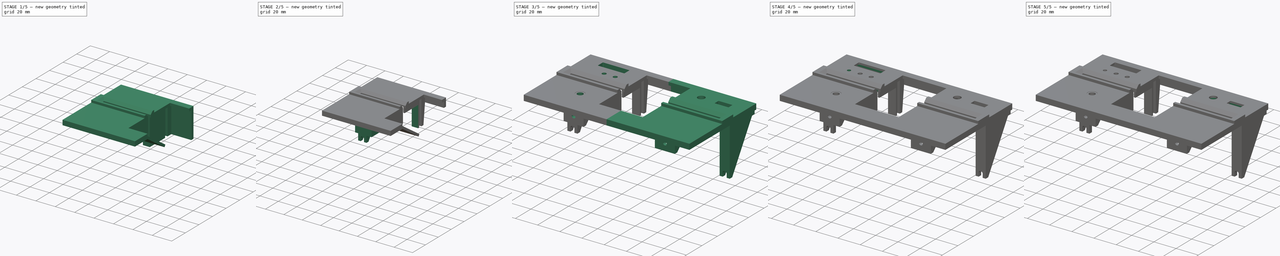
[diagram: build sequence overview — one tinted view per stage of 5, left to right]
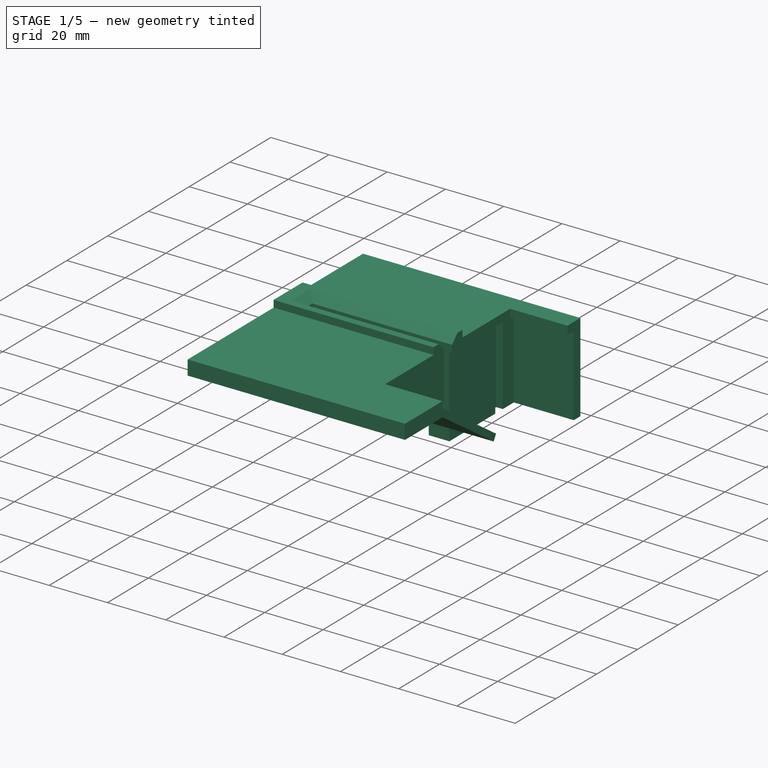
[diagram: stage 1 of 5 — iso view after this stage's code; geometry added in this stage tinted green]
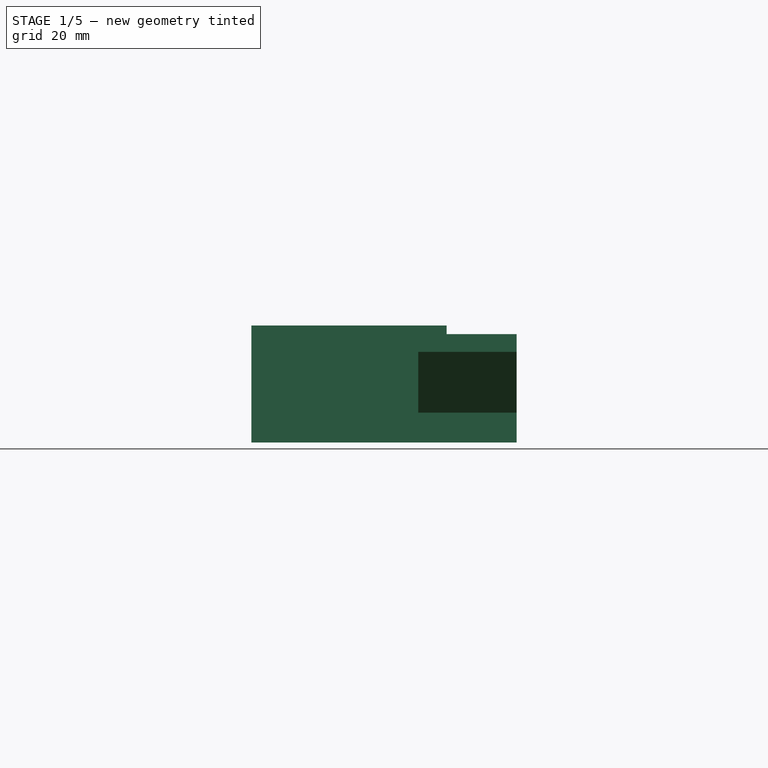
[diagram: stage 1 of 5 — front view after this stage's code; geometry added in this stage tinted green]
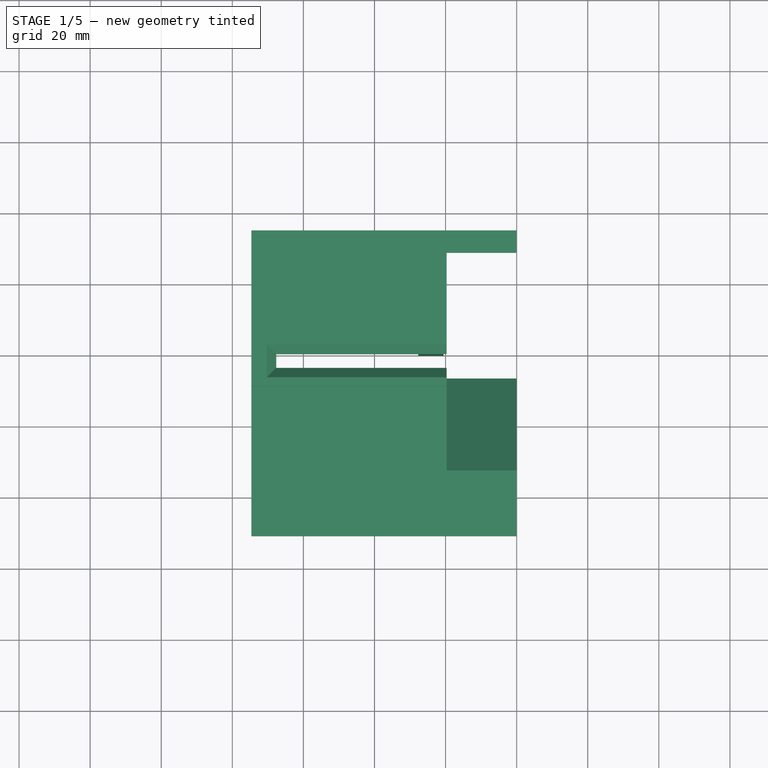
[diagram: stage 1 of 5 — top view after this stage's code; geometry added in this stage tinted green]
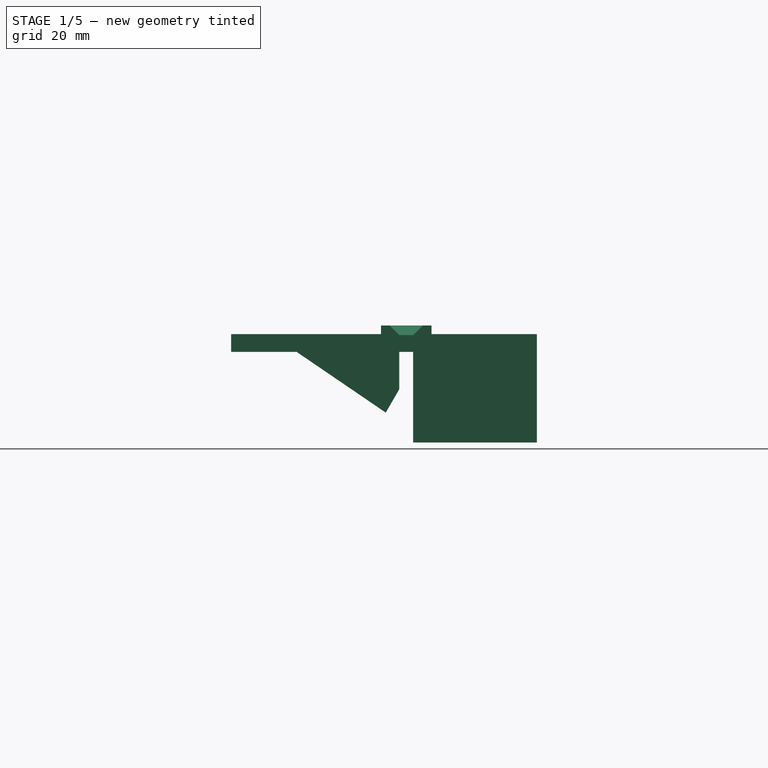
[diagram: stage 1 of 5 — right view after this stage's code; geometry added in this stage tinted green]
FCSTD DOCUMENT  (FreeCAD 0.21R33771 (Git))
Label: m4-floppy-face2
License: All rights reserved
LicenseURL: http://en.wikipedia.org/wiki/All_rights_reserved
objects: Sketcher::SketchObject×38, PartDesign::Pocket×20, PartDesign::Pad×17, PartDesign::Chamfer×1, PartDesign::Mirrored×1, PartDesign::Body×1
note: 116 computed .brp shape members not serialized (recipe doc carries the construction recipe); baked Part::Feature solids carry a one-line shape summary decoded from their .brp

FEATURE [Sketcher::SketchObject] Sketch
  FullyConstrained = true
  MapMode = 5
  Support = -> [XY_Plane]
  sketch-geometry (12):
    g0: LineSegment StartX=0 StartY=34.8 StartZ=0 EndX=-74.65 EndY=34.8 EndZ=0
    g1: LineSegment StartX=-74.65 StartY=34.8 StartZ=0 EndX=-74.65 EndY=-51.2 EndZ=0
    g2: LineSegment StartX=-74.65 StartY=-51.2 StartZ=0 EndX=0 EndY=-51.2 EndZ=0
    g3: LineSegment StartX=-19.7 StartY=0 StartZ=0 EndX=-67.65 EndY=0 EndZ=0
    g4: LineSegment StartX=-67.65 StartY=0 StartZ=0 EndX=-67.65 EndY=-3.9 EndZ=0
    g5: LineSegment StartX=-67.65 StartY=-3.9 StartZ=0 EndX=-19.7 EndY=-3.9 EndZ=0
    g6: LineSegment StartX=-19.7 StartY=0 StartZ=0 EndX=-19.7 EndY=28.5 EndZ=0
    g7: LineSegment StartX=-19.7 StartY=28.5 StartZ=0 EndX=0 EndY=28.5 EndZ=0
    g8: LineSegment StartX=-19.7 StartY=-3.9 StartZ=0 EndX=-19.7 EndY=-32.8 EndZ=0
    g9: LineSegment StartX=-19.7 StartY=-32.8 StartZ=0 EndX=0 EndY=-32.8 EndZ=0
    g10: LineSegment StartX=0 StartY=28.5 StartZ=0 EndX=0 EndY=34.8 EndZ=0
    g11: LineSegment StartX=0 StartY=-32.8 StartZ=0 EndX=0 EndY=-51.2 EndZ=0
  constraints (36):
    c: PointOnObject(g0,g-2)
    c: Horizontal(g0)
    c: Coincident(g1,g0)
    c: Vertical(g1)
    c: Coincident(g2,g1)
    c: PointOnObject(g2,g-2)
    c: Horizontal(g2)
    c: DistanceX(g0,g0) = 74.65
    c: DistanceY(g1,g1) = 86
    c: DistanceY(g-1,g0) = 34.8
    c: PointOnObject(g3,g-1)
    c: Coincident(g4,g3)
    c: Vertical(g4)
    c: Coincident(g5,g4)
    c: Horizontal(g5)
    c: DistanceY(g4,g4) = 3.9
    c: Vertical(g6)
    c: Coincident(g7,g6)
    c: PointOnObject(g7,g-2)
    c: Horizontal(g7)
    c: DistanceX(g7,g7) = 19.7
    c: DistanceY(g6,g0) = 6.3
    c: Coincident(g3,g6)
    c: Horizontal(g3)
    c: Vertical(g8)
    c: Coincident(g9,g8)
    c: PointOnObject(g9,g-2)
    c: Horizontal(g9)
    c: DistanceY(g1,g8) = 18.4
    c: PointOnObject(g8,g6)
    c: Coincident(g5,g8)
    c: DistanceX(g4,g-1) = 67.65
    c: Coincident(g10,g7)
    c: Coincident(g10,g0)
    c: Coincident(g11,g9)
    c: Coincident(g11,g2)
FEATURE [PartDesign::Pad] Pad
  Direction = (0,0,1)
  Length = 7.4
  Length2 = 10
  Profile = -> Sketch
  ReferenceAxis = -> Sketch [N_Axis]
  Type = 0
FEATURE [Sketcher::SketchObject] Sketch001
  ExternalGeometry = -> [Pad]
  FullyConstrained = true
  MapMode = 5
  Placement = pos=(0,0,7.4) rot=(0,0,1;0rad)
  Support = -> [Pad]
  sketch-geometry (12):
    g0: LineSegment StartX=-19.7 StartY=-3.9 StartZ=0 EndX=-19.7 EndY=-9.05 EndZ=0
    g1: LineSegment StartX=-19.7 StartY=-9.05 StartZ=0 EndX=-74.65 EndY=-9.05 EndZ=0
    g2: LineSegment StartX=-74.65 StartY=5.15 StartZ=0 EndX=-19.7 EndY=5.15 EndZ=0
    g3: LineSegment StartX=-19.7 StartY=5.15 StartZ=0 EndX=-19.7 EndY=0 EndZ=0
    g4: LineSegment StartX=-19.7 StartY=5.15 StartZ=0 EndX=0 EndY=5.15 EndZ=0
    g5: LineSegment StartX=0 StartY=5.15 StartZ=0 EndX=0 EndY=34.8 EndZ=0
    g6: LineSegment StartX=-74.65 StartY=34.8 StartZ=0 EndX=0 EndY=34.8 EndZ=0
    g7: LineSegment StartX=-74.65 StartY=34.8 StartZ=0 EndX=-74.65 EndY=5.15 EndZ=0
    g8: LineSegment StartX=-74.65 StartY=-9.05 StartZ=0 EndX=-74.65 EndY=-51.2 EndZ=0
    g9: LineSegment StartX=-74.65 StartY=-51.2 StartZ=0 EndX=0 EndY=-51.2 EndZ=0
    g10: LineSegment StartX=0 StartY=-51.2 StartZ=0 EndX=0 EndY=-9.05 EndZ=0
    g11: LineSegment StartX=0 StartY=-9.05 StartZ=0 EndX=-19.7 EndY=-9.05 EndZ=0
  constraints (32):
    c: PointOnObject(g0,g-5)
    c: Coincident(g1,g0)
    c: PointOnObject(g1,g-3)
    c: PointOnObject(g2,g-3)
    c: PointOnObject(g2,g-4)
    c: Horizontal(g2)
    c: Coincident(g3,g2)
    c: Horizontal(g1)
    c: Equal(g3,g0)
    c: DistanceY(g1,g2) = 14.2
    c: Coincident(g3,g-4)
    c: Coincident(g0,g-5)
    c: Coincident(g4,g2)
    c: PointOnObject(g4,g-2)
    c: Horizontal(g4)
    c: Coincident(g5,g4)
    c: PointOnObject(g5,g-2)
    c: Coincident(g6,g-3)
    c: Coincident(g6,g5)
    c: Horizontal(g6)
    c: Coincident(g7,g6)
    c: Coincident(g7,g2)
    c: Coincident(g8,g1)
    c: Coincident(g8,g-3)
    c: Coincident(g9,g8)
    c: PointOnObject(g9,g-2)
    c: Horizontal(g9)
    c: Coincident(g10,g9)
    c: Vertical(g10)
    c: Coincident(g11,g10)
    c: Coincident(g11,g1)
    c: Horizontal(g11)
FEATURE [PartDesign::Pocket] Pocket
  BaseFeature = -> Pad
  Direction = (0,0,-1)
  Length = 2.4
  Length2 = 5
  Profile = -> Sketch001
  ReferenceAxis = -> Sketch001 [N_Axis]
  Type = 0
FEATURE [PartDesign::Chamfer] Chamfer
  Angle = 45
  Base = -> Pocket [Edge26,Edge27,Edge28]
  BaseFeature = -> Pocket
  ChamferType = 0
  FlipDirection = false
  Size = 2.7
  Size2 = 1
  SupportTransform = false
  UseAllEdges = false
FEATURE [Sketcher::SketchObject] Sketch002
  ExternalGeometry = -> [Chamfer]
  FullyConstrained = true
  MapMode = 5
  Placement = pos=(-19.7,0,0) rot=(0.57735,0.57735,0.57735;2.0944rad)
  Support = -> [Chamfer]
  sketch-geometry (5):
    g0: LineSegment StartX=-3.9 StartY=0 StartZ=0 EndX=-32.8 EndY=0 EndZ=0
    g1: LineSegment StartX=-32.8 StartY=5 StartZ=0 EndX=-32.8 EndY=0 EndZ=0
    g2: LineSegment StartX=-32.8 StartY=0 StartZ=0 EndX=-7.7 EndY=-17.1 EndZ=0
    g3: LineSegment StartX=-3.9 StartY=0 StartZ=0 EndX=-3.9 EndY=-10.5182 EndZ=0
    g4: LineSegment StartX=-3.9 StartY=-10.5182 StartZ=0 EndX=-7.7 EndY=-17.1 EndZ=0
  constraints (13):
    c: Coincident(g0,g-4)
    c: PointOnObject(g0,g-1)
    c: Coincident(g1,g-3)
    c: Coincident(g1,g0)
    c: Vertical(g1)
    c: Coincident(g3,g0)
    c: Vertical(g3)
    c: Coincident(g4,g3)
    c: Coincident(g4,g2)
    c: Angle(g3,g4) = 2.61799
    c: DistanceY(g2,g-5) = 24.5
    c: Distance(g4) = 7.6
    c: Coincident(g2,g0)
FEATURE [PartDesign::Pad] Pad001
  BaseFeature = -> Chamfer
  Direction = (1,0,0)
  Length = 3
  Length2 = 10
  Profile = -> Sketch002
  ReferenceAxis = -> Sketch002 [N_Axis]
  Reversed = true
  Type = 0
FEATURE [Sketcher::SketchObject] Sketch003
  ExternalGeometry = -> [Pad001]
  FullyConstrained = true
  MapMode = 5
  Placement = pos=(-19.7,0,0) rot=(0.57735,0.57735,0.57735;2.0944rad)
  Support = -> [Pad001]
  sketch-geometry (5):
    g0: LineSegment StartX=-32.8 StartY=0 StartZ=0 EndX=-7.7 EndY=-17.1 EndZ=0
    g1: LineSegment StartX=-7.7 StartY=-17.1 StartZ=0 EndX=-6.54681 EndY=-15.1026 EndZ=0
    g2: LineSegment StartX=-6.54681 StartY=-15.1026 StartZ=0 EndX=-32.8 EndY=2.78303 EndZ=0
    g3: LineSegment StartX=-32.8 StartY=0 StartZ=0 EndX=-32.8 EndY=2.78303 EndZ=0
    g4: LineSegment StartX=-6.54681 StartY=-15.1026 StartZ=0 EndX=-7.84178 EndY=-17.0034 EndZ=0
  constraints (13):
    c: Coincident(g0,g-5)
    c: Coincident(g1,g0)
    c: PointOnObject(g1,g-5)
    c: Coincident(g2,g1)
    c: Coincident(g3,g0)
    c: Coincident(g3,g2)
    c: Vertical(g3)
    c: Coincident(g0,g-4)
    c: Parallel(g2,g0)
    c: Coincident(g4,g1)
    c: PointOnObject(g4,g0)
    c: Perpendicular(g0,g4)
    c: Distance(g4) = 2.3
FEATURE [PartDesign::Pad] Pad002
  BaseFeature = -> Pad001
  Direction = (1,0,0)
  Length = 10
  Length2 = 10
  Profile = -> Sketch003
  ReferenceAxis = -> Sketch003 [N_Axis]
  Type = 3
  UpToFace = -> Pad001 [Face21]
FEATURE [Sketcher::SketchObject] Sketch004
  ExternalGeometry = -> [Pad002]
  FullyConstrained = true
  MapMode = 5
  Placement = pos=(0,0,0) rot=(1,0,0;3.14159rad)
  Support = -> [Pad002]
  sketch-geometry (8):
    g0: LineSegment StartX=-19.7 StartY=0 StartZ=0 EndX=-27.7 EndY=0 EndZ=0
    g1: LineSegment StartX=-27.7 StartY=0 StartZ=0 EndX=-27.7 EndY=-31.6 EndZ=0
    g2: LineSegment StartX=-19.7 StartY=0 StartZ=0 EndX=-19.7 EndY=-28.5 EndZ=0
    g3: LineSegment StartX=-27.7 StartY=-31.6 StartZ=0 EndX=-74.65 EndY=-31.6 EndZ=0
    g4: LineSegment StartX=-74.65 StartY=-31.6 StartZ=0 EndX=-74.65 EndY=-34.8 EndZ=0
    g5: LineSegment StartX=-74.65 StartY=-34.8 StartZ=0 EndX=0 EndY=-34.8 EndZ=0
    g6: LineSegment StartX=-19.7 StartY=-28.5 StartZ=0 EndX=0 EndY=-28.5 EndZ=0
    g7: LineSegment StartX=0 StartY=-28.5 StartZ=0 EndX=0 EndY=-34.8 EndZ=0
  constraints (21):
    c: Coincident(g0,g-3)
    c: PointOnObject(g0,g-1)
    c: Coincident(g1,g0)
    c: Vertical(g1)
    c: Coincident(g2,g0)
    c: Vertical(g2)
    c: DistanceX(g0,g0) = 8
    c: Horizontal(g3)
    c: Coincident(g4,g3)
    c: Coincident(g4,g-5)
    c: Vertical(g4)
    c: Coincident(g5,g4)
    c: Coincident(g1,g3)
    c: Coincident(g6,g-3)
    c: PointOnObject(g6,g-2)
    c: Horizontal(g6)
    c: Coincident(g7,g6)
    c: Coincident(g7,g-5)
    c: PointOnObject(g2,g6)
    c: Coincident(g5,g7)
    c: DistanceY(g4,g4) = 3.2
FEATURE [PartDesign::Pad] Pad003
  BaseFeature = -> Pad002
  Direction = (0,0,-1)
  Length = 25.5
  Length2 = 10
  Profile = -> Sketch004
  ReferenceAxis = -> Sketch004 [N_Axis]
  Type = 0
FEATURE [Sketcher::SketchObject] Sketch005
  ExternalGeometry = -> [Pad003]
  FullyConstrained = true
  MapMode = 5
  Placement = pos=(0,0,-25.5) rot=(1,0,0;3.14159rad)
  Support = -> [Pad003]
  sketch-geometry (8):
    g0: LineSegment StartX=0 StartY=1.4 StartZ=0 EndX=-20.6 EndY=1.4 EndZ=0
    g1: LineSegment StartX=-20.6 StartY=1.4 StartZ=0 EndX=-20.6 EndY=-22.5 EndZ=0
    g2: LineSegment StartX=-20.6 StartY=-22.5 StartZ=0 EndX=-22.9 EndY=-22.5 EndZ=0
    g3: LineSegment StartX=-22.9 StartY=-22.5 StartZ=0 EndX=-22.9 EndY=-26.2 EndZ=0
    g4: LineSegment StartX=-22.9 StartY=-26.2 StartZ=0 EndX=-20.6 EndY=-26.2 EndZ=0
    g5: LineSegment StartX=-20.6 StartY=-26.2 StartZ=0 EndX=-20.6 EndY=-31.6 EndZ=0
    g6: LineSegment StartX=-20.6 StartY=-31.6 StartZ=0 EndX=0 EndY=-31.6 EndZ=0
    g7: LineSegment StartX=0 StartY=-31.6 StartZ=0 EndX=0 EndY=1.4 EndZ=0
  constraints (24):
    c: PointOnObject(g0,g-2)
    c: Horizontal(g0)
    c: Coincident(g1,g0)
    c: Vertical(g1)
    c: Coincident(g2,g1)
    c: Horizontal(g2)
    c: Coincident(g3,g2)
    c: Vertical(g3)
    c: Coincident(g4,g3)
    c: Horizontal(g4)
    c: Coincident(g5,g4)
    c: Vertical(g5)
    c: Coincident(g6,g5)
    c: PointOnObject(g6,g-2)
    c: Horizontal(g6)
    c: Coincident(g7,g6)
    c: Coincident(g7,g0)
    c: DistanceY(g3,g3) = 3.7
    c: DistanceY(g-3,g6) = 3.2
    c: DistanceY(g7,g7) = 33
    c: DistanceY(g-3,g4) = 8.6
    c: PointOnObject(g4,g1)
    c: DistanceX(g3,g-3) = 22.9
    c: DistanceX(g6,g6) = 20.6
FEATURE [PartDesign::Pocket] Pocket001
  BaseFeature = -> Pad003
  Direction = (0,0,1)
  Length = 27.7
  Length2 = 5
  Profile = -> Sketch005
  ReferenceAxis = -> Sketch005 [N_Axis]
  Type = 0
FEATURE [Sketcher::SketchObject] Sketch006
  ExternalGeometry = -> [Pocket001]
  FullyConstrained = true
  MapMode = 5
  Placement = pos=(-22.7,0,0) rot=(0.57735,-0.57735,-0.57735;2.0944rad)
  Support = -> [Pocket001]
  sketch-geometry (4):
    g0: LineSegment StartX=3.9 StartY=0 StartZ=0 EndX=32.8 EndY=0 EndZ=0
    g1: LineSegment StartX=32.8 StartY=0 StartZ=0 EndX=7.7 EndY=-17.1 EndZ=0
    g2: LineSegment StartX=7.7 StartY=-17.1 StartZ=0 EndX=3.9 EndY=-10.5182 EndZ=0
    g3: LineSegment StartX=3.9 StartY=-10.5182 StartZ=0 EndX=3.9 EndY=0 EndZ=0
  constraints (8):
    c: Coincident(g0,g-4)
    c: Coincident(g0,g-6)
    c: Coincident(g1,g0)
    c: Coincident(g1,g-6)
    c: Coincident(g2,g1)
    c: Coincident(g2,g-5)
    c: Coincident(g3,g2)
    c: Coincident(g3,g0)
FEATURE [PartDesign::Pad] Pad004
  BaseFeature = -> Pocket001
  Direction = (-1,0,0)
  Length = 10
  Length2 = 10
  Profile = -> Sketch006
  ReferenceAxis = -> Sketch006 [N_Axis]
  Type = 3
  UpToFace = -> Pocket001 [Face26]
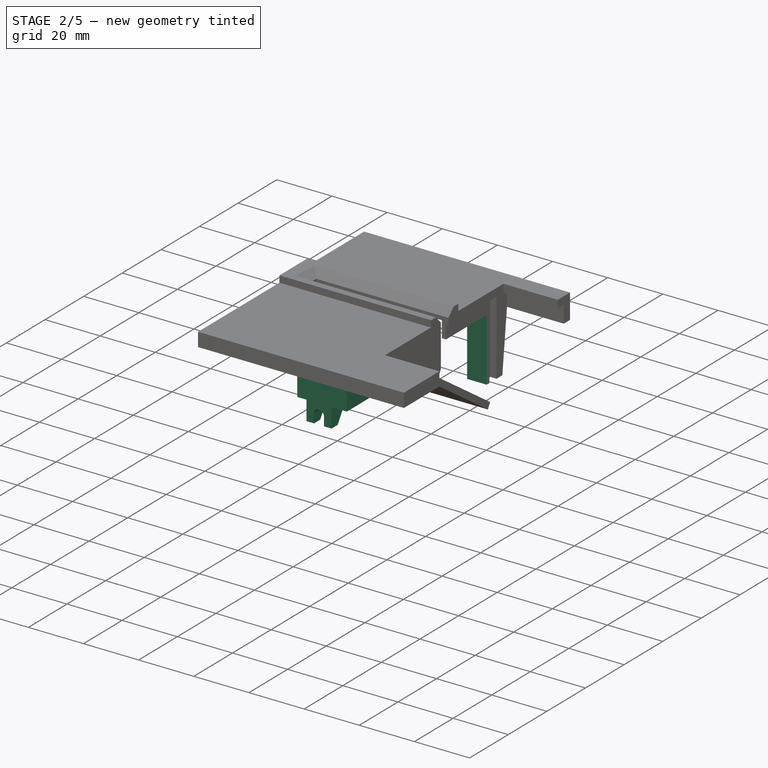
[diagram: stage 2 of 5 — iso view after this stage's code; geometry added in this stage tinted green]
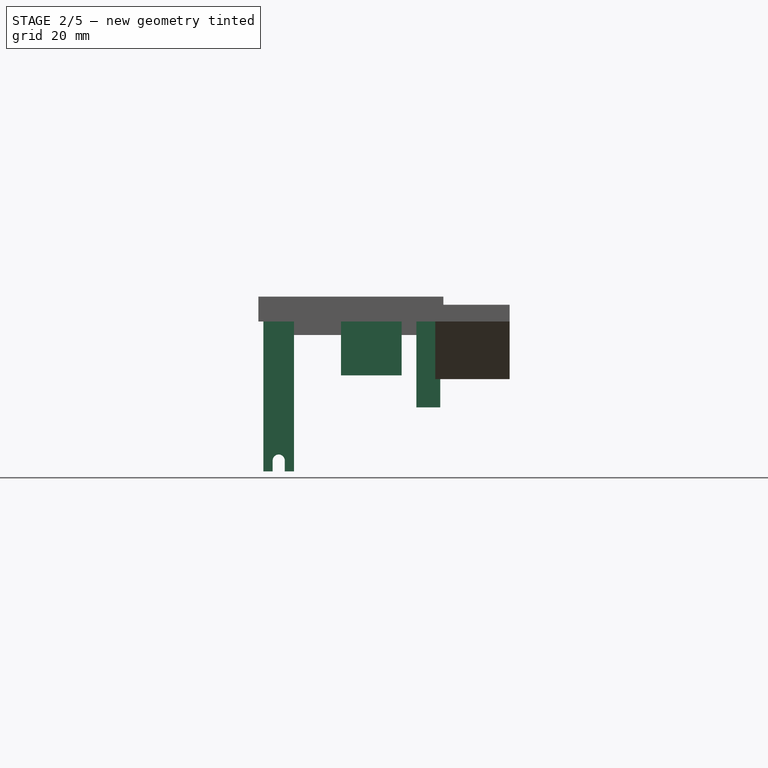
[diagram: stage 2 of 5 — front view after this stage's code; geometry added in this stage tinted green]
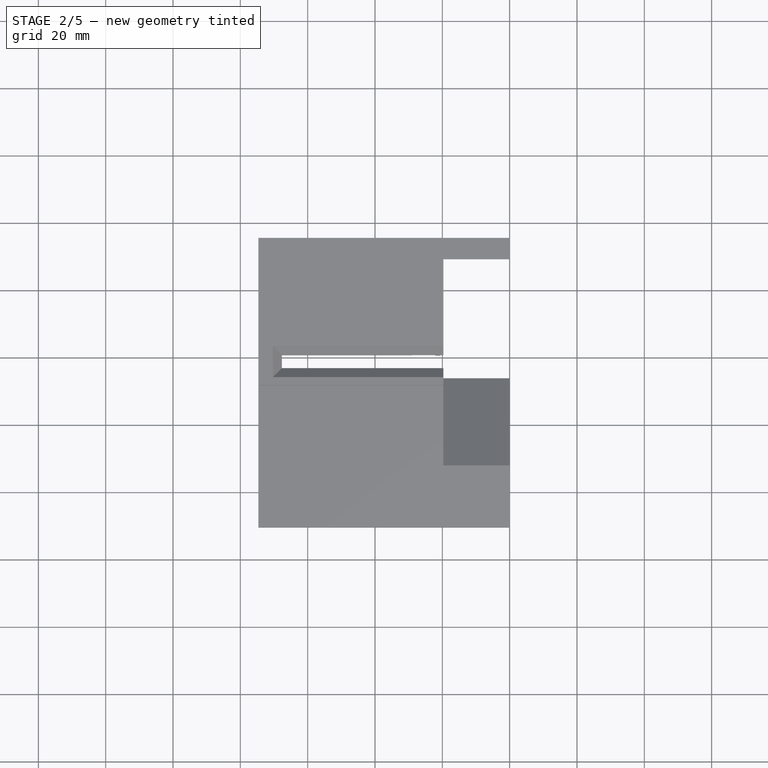
[diagram: stage 2 of 5 — top view after this stage's code; geometry added in this stage tinted green]
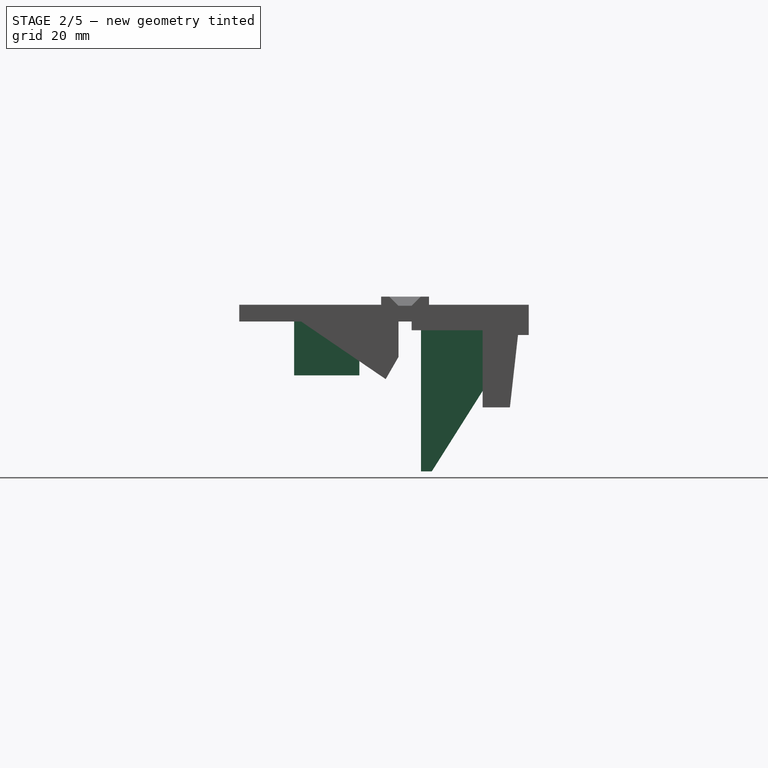
[diagram: stage 2 of 5 — right view after this stage's code; geometry added in this stage tinted green]
FEATURE [Sketcher::SketchObject] Sketch007
  ExternalGeometry = -> [Pad004]
  FullyConstrained = true
  MapMode = 5
  Placement = pos=(-27.7,0,0) rot=(0.57735,-0.57735,-0.57735;2.0944rad)
  Support = -> [Pad004]
  sketch-geometry (4):
    g0: LineSegment StartX=0 StartY=-25.5 StartZ=0 EndX=-21.1 EndY=-25.5 EndZ=0
    g1: LineSegment StartX=-21.1 StartY=-25.5 StartZ=0 EndX=-21.1 EndY=-2.6 EndZ=0
    g2: LineSegment StartX=-21.1 StartY=-2.6 StartZ=0 EndX=0 EndY=-2.6 EndZ=0
    g3: LineSegment StartX=0 StartY=-2.6 StartZ=0 EndX=0 EndY=-25.5 EndZ=0
  constraints (11):
    c: Coincident(g0,g1)
    c: Coincident(g1,g2)
    c: Coincident(g2,g3)
    c: Coincident(g3,g0)
    c: Horizontal(g0)
    c: Horizontal(g2)
    c: Vertical(g1)
    c: Vertical(g3)
    c: Coincident(g0,g-3)
    c: DistanceX(g1,g-4) = 25
    c: DistanceY(g2,g-1) = 2.6
FEATURE [PartDesign::Pocket] Pocket002
  BaseFeature = -> Pad004
  Direction = (1,0,0)
  Length = 8
  Length2 = 5
  Profile = -> Sketch007
  ReferenceAxis = -> Sketch007 [N_Axis]
  Type = 0
FEATURE [Sketcher::SketchObject] Sketch008
  ExternalGeometry = -> [Pocket002]
  FullyConstrained = true
  MapMode = 5
  Placement = pos=(0,0,-25.5) rot=(1,0,0;3.14159rad)
  Support = -> [Pocket002]
  sketch-geometry (4):
    g0: LineSegment StartX=-22.1 StartY=-21.1 StartZ=0 EndX=-29 EndY=-21.1 EndZ=0
    g1: LineSegment StartX=-29 StartY=-21.1 StartZ=0 EndX=-29 EndY=32.8 EndZ=0
    g2: LineSegment StartX=-29 StartY=32.8 StartZ=0 EndX=-22.1 EndY=32.8 EndZ=0
    g3: LineSegment StartX=-22.1 StartY=32.8 StartZ=0 EndX=-22.1 EndY=-21.1 EndZ=0
  constraints (12):
    c: Coincident(g0,g1)
    c: Coincident(g1,g2)
    c: Coincident(g2,g3)
    c: Coincident(g3,g0)
    c: Horizontal(g0)
    c: Horizontal(g2)
    c: Vertical(g1)
    c: Vertical(g3)
    c: PointOnObject(g0,g-3)
    c: DistanceX(g0,g-1) = 29
    c: DistanceX(g2,g-1) = 22.1
    c: PointOnObject(g-4,g2)
FEATURE [PartDesign::Pocket] Pocket003
  BaseFeature = -> Pocket002
  Direction = (0,0,1)
  Length = 28.8
  Length2 = 5
  Profile = -> Sketch008
  ReferenceAxis = -> Sketch008 [N_Axis]
  Type = 0
FEATURE [Sketcher::SketchObject] Sketch009
  ExternalGeometry = -> [Pocket003]
  FullyConstrained = true
  MapMode = 5
  Placement = pos=(-74.65,0,0) rot=(0.57735,-0.57735,-0.57735;2.0944rad)
  Support = -> [Pocket003]
  sketch-geometry (4):
    g0: LineSegment StartX=-31.6 StartY=0 StartZ=0 EndX=-2.8 EndY=0 EndZ=0
    g1: LineSegment StartX=-2.8 StartY=0 StartZ=0 EndX=-2.8 EndY=-44.5 EndZ=0
    g2: LineSegment StartX=-2.8 StartY=-44.5 StartZ=0 EndX=-31.6 EndY=-44.5 EndZ=0
    g3: LineSegment StartX=-31.6 StartY=-44.5 StartZ=0 EndX=-31.6 EndY=0 EndZ=0
  constraints (11):
    c: Coincident(g0,g1)
    c: Coincident(g1,g2)
    c: Coincident(g2,g3)
    c: Coincident(g3,g0)
    c: Horizontal(g0)
    c: Horizontal(g2)
    c: Vertical(g1)
    c: Vertical(g3)
    c: Coincident(g0,g-3)
    c: DistanceY(g1,g-4) = 49.5
    c: DistanceX(g0,g-5) = 54
FEATURE [PartDesign::Pad] Pad005
  BaseFeature = -> Pocket003
  Direction = (-1,0,0)
  Length = 10.6
  Length2 = 10
  Profile = -> Sketch009
  ReferenceAxis = -> Sketch009 [N_Axis]
  Reversed = true
  Type = 0
FEATURE [Sketcher::SketchObject] Sketch010
  ExternalGeometry = -> [Pad005]
  FullyConstrained = true
  MapMode = 5
  Placement = pos=(0,2.8,0) rot=(1,0,0;1.5708rad)
  Support = -> [Pad005]
  sketch-geometry (6):
    g0: ArcOfCircle CenterX=-68.6 CenterY=-41.3 CenterZ=0 NormalX=0 NormalY=0 NormalZ=1 AngleXU=0 Radius=1.8 StartAngle=-2.7e-15 EndAngle=3.14159
    g1: ArcOfCircle CenterX=-68.6 CenterY=-44.5 CenterZ=0 NormalX=0 NormalY=0 NormalZ=1 AngleXU=0 Radius=1.8 StartAngle=3.14159 EndAngle=6.28319
    g2: LineSegment StartX=-70.4 StartY=-41.3 StartZ=0 EndX=-70.4 EndY=-44.5 EndZ=0
    g3: LineSegment StartX=-66.8 StartY=-44.5 StartZ=0 EndX=-66.8 EndY=-41.3 EndZ=0
    g4: GeomPoint X=-68.6 Y=-39.5 Z=0
    g5: LineSegment StartX=-68.6 StartY=-39.5 StartZ=0 EndX=-68.6 EndY=-44.5 EndZ=0
  constraints (14):
    c: Tangent(g0,g2) = -1.5708
    c: Tangent(g2,g1) = -1.5708
    c: Tangent(g1,g3) = -1.5708
    c: Tangent(g3,g0) = -1.5708
    c: Equal(g0,g1)
    c: Vertical(g2)
    c: PointOnObject(g4,g0)
    c: Coincident(g5,g4)
    c: Coincident(g5,g1)
    c: Vertical(g5)
    c: DistanceY(g4,g-4) = 44.5
    c: Diameter(g0) = 3.6
    c: PointOnObject(g1,g-3)
    c: DistanceX(g0,g-1) = 66.8
FEATURE [PartDesign::Pocket] Pocket004
  BaseFeature = -> Pad005
  Direction = (0,1,-2e-16)
  Length = 5
  Length2 = 5
  Profile = -> Sketch010
  ReferenceAxis = -> Sketch010 [N_Axis]
  Type = 1
FEATURE [Sketcher::SketchObject] Sketch011
  ExternalGeometry = -> [Pocket004]
  FullyConstrained = true
  MapMode = 5
  Placement = pos=(-74.65,0,0) rot=(0.57735,-0.57735,-0.57735;2.0944rad)
  Support = -> [Pocket004]
  sketch-geometry (4):
    g0: LineSegment StartX=-6 StartY=-44.5 StartZ=0 EndX=-31.6 EndY=-4 EndZ=0
    g1: LineSegment StartX=-34.8 StartY=-4 StartZ=0 EndX=-34.8 EndY=-44.5 EndZ=0
    g2: LineSegment StartX=-34.8 StartY=-44.5 StartZ=0 EndX=-6 EndY=-44.5 EndZ=0
    g3: LineSegment StartX=-34.8 StartY=-4 StartZ=0 EndX=-31.6 EndY=-4 EndZ=0
  constraints (13):
    c: PointOnObject(g0,g-4)
    c: Vertical(g1)
    c: Coincident(g2,g1)
    c: Coincident(g2,g0)
    c: Horizontal(g2)
    c: DistanceX(g0,g-4) = 3.2
    c: PointOnObject(g3,g0)
    c: Horizontal(g3)
    c: PointOnObject(g3,g-5)
    c: PointOnObject(g0,g-5)
    c: Coincident(g1,g3)
    c: PointOnObject(g1,g-3)
    c: DistanceY(g1,g-3) = 4
FEATURE [PartDesign::Pocket] Pocket005
  BaseFeature = -> Pocket004
  Direction = (1,0,0)
  Length = 0
  Length2 = 5
  Profile = -> Sketch011
  ReferenceAxis = -> Sketch011 [N_Axis]
  Type = 3
  UpToFace = -> Pocket004 [Face42]
FEATURE [Sketcher::SketchObject] Sketch012
  ExternalGeometry = -> [Pocket005]
  FullyConstrained = true
  MapMode = 5
  Placement = pos=(-27.7,0,0) rot=(0.57735,-0.57735,-0.57735;2.0944rad)
  Support = -> [Pocket005]
  sketch-geometry (4):
    g0: LineSegment StartX=-34.8 StartY=-4 StartZ=0 EndX=-34.8 EndY=-25.5 EndZ=0
    g1: LineSegment StartX=-34.8 StartY=-4 StartZ=0 EndX=-31.6 EndY=-4 EndZ=0
    g2: LineSegment StartX=-31.6 StartY=-4 StartZ=0 EndX=-29.2 EndY=-25.5 EndZ=0
    g3: LineSegment StartX=-29.2 StartY=-25.5 StartZ=0 EndX=-34.8 EndY=-25.5 EndZ=0
  constraints (11):
    c: Coincident(g0,g-4)
    c: Vertical(g0)
    c: PointOnObject(g1,g0)
    c: Coincident(g1,g-4)
    c: Horizontal(g1)
    c: Coincident(g2,g1)
    c: Coincident(g3,g0)
    c: Coincident(g3,g2)
    c: PointOnObject(g2,g-3)
    c: Horizontal(g3)
    c: DistanceX(g2,g-3) = 3
FEATURE [PartDesign::Pocket] Pocket006
  BaseFeature = -> Pocket005
  Direction = (1,0,0)
  Length = 5
  Length2 = 5
  Profile = -> Sketch012
  ReferenceAxis = -> Sketch012 [N_Axis]
  Type = 1
FEATURE [Sketcher::SketchObject] Sketch013
  ExternalGeometry = -> [Pocket006]
  FullyConstrained = true
  MapMode = 5
  Placement = pos=(-74.65,0,0) rot=(0.57735,-0.57735,-0.57735;2.0944rad)
  Support = -> [Pocket006]
  sketch-geometry (6):
    g0: LineSegment StartX=-34.8 StartY=0 StartZ=0 EndX=-34.8 EndY=-4 EndZ=0
    g1: LineSegment StartX=-34.8 StartY=-4 StartZ=0 EndX=-31.6 EndY=-4 EndZ=0
    g2: LineSegment StartX=-31.6 StartY=-4 StartZ=0 EndX=-6 EndY=-44.5 EndZ=0
    g3: LineSegment StartX=-6 StartY=-44.5 StartZ=0 EndX=-2.8 EndY=-44.5 EndZ=0
    g4: LineSegment StartX=-2.8 StartY=-44.5 StartZ=0 EndX=-2.8 EndY=0 EndZ=0
    g5: LineSegment StartX=-2.8 StartY=0 StartZ=0 EndX=-34.8 EndY=0 EndZ=0
  constraints (12):
    c: Coincident(g0,g-3)
    c: Coincident(g0,g-4)
    c: Coincident(g1,g0)
    c: Coincident(g1,g-5)
    c: Coincident(g2,g1)
    c: Coincident(g2,g-5)
    c: Coincident(g3,g2)
    c: Coincident(g3,g-6)
    c: Coincident(g4,g3)
    c: Coincident(g4,g-6)
    c: Coincident(g5,g4)
    c: Coincident(g5,g0)
FEATURE [PartDesign::Pocket] Pocket007
  BaseFeature = -> Pocket006
  Direction = (1,0,0)
  Length = 1.5
  Length2 = 5
  Profile = -> Sketch013
  ReferenceAxis = -> Sketch013 [N_Axis]
  Type = 0
FEATURE [Sketcher::SketchObject] Sketch014
  ExternalGeometry = -> [Pocket007]
  FullyConstrained = true
  MapMode = 5
  Placement = pos=(0,0,0) rot=(1,0,0;3.14159rad)
  Support = -> [Pocket007]
  sketch-geometry (10):
    g0: LineSegment StartX=-50.1 StartY=15.5 StartZ=0 EndX=-50.1 EndY=34.9 EndZ=0
    g1: LineSegment StartX=-32.1 StartY=34.9 StartZ=0 EndX=-32.1 EndY=15.5 EndZ=0
    g2: LineSegment StartX=-32.1 StartY=15.5 StartZ=0 EndX=-35.1 EndY=15.5 EndZ=0
    g3: LineSegment StartX=-35.1 StartY=15.5 StartZ=0 EndX=-35.1 EndY=31.9 EndZ=0
    g4: LineSegment StartX=-35.1 StartY=31.9 StartZ=0 EndX=-47.1 EndY=31.9 EndZ=0
    g5: LineSegment StartX=-47.1 StartY=31.9 StartZ=0 EndX=-47.1 EndY=15.5 EndZ=0
    g6: LineSegment StartX=-47.1 StartY=15.5 StartZ=0 EndX=-50.1 EndY=15.5 EndZ=0
    g7: GeomPoint X=-41.1 Y=34.9 Z=0
    g8: LineSegment StartX=-50.1 StartY=34.9 StartZ=0 EndX=-41.1 EndY=34.9 EndZ=0
    g9: LineSegment StartX=-41.1 StartY=34.9 StartZ=0 EndX=-32.1 EndY=34.9 EndZ=0
  constraints (28):
    c: Vertical(g0)
    c: Vertical(g1)
    c: Coincident(g1,g2)
    c: Horizontal(g2)
    c: Coincident(g2,g3)
    c: Vertical(g3)
    c: Coincident(g3,g4)
    c: Coincident(g4,g5)
    c: Coincident(g5,g6)
    c: Coincident(g6,g0)
    c: Horizontal(g6)
    c: Vertical(g5)
    c: Horizontal(g4)
    c: PointOnObject(g2,g6)
    c: Equal(g6,g2)
    c: DistanceY(g0,g-3) = 16.3
    c: Coincident(g8,g0)
    c: Coincident(g8,g7)
    c: Horizontal(g8)
    c: Coincident(g9,g8)
    c: Coincident(g9,g1)
    c: Horizontal(g9)
    c: Equal(g8,g9)
    c: DistanceX(g8,g-3) = 41.1
    c: DistanceX(g0,g1) = 18
    c: DistanceY(g4,g0) = 3
    c: DistanceX(g6,g6) = 3
    c: DistanceY(g0,g0) = 19.4
FEATURE [PartDesign::Pad] Pad006
  BaseFeature = -> Pocket007
  Direction = (0,0,-1)
  Length = 16
  Length2 = 10
  Profile = -> Sketch014
  ReferenceAxis = -> Sketch014 [N_Axis]
  Type = 0
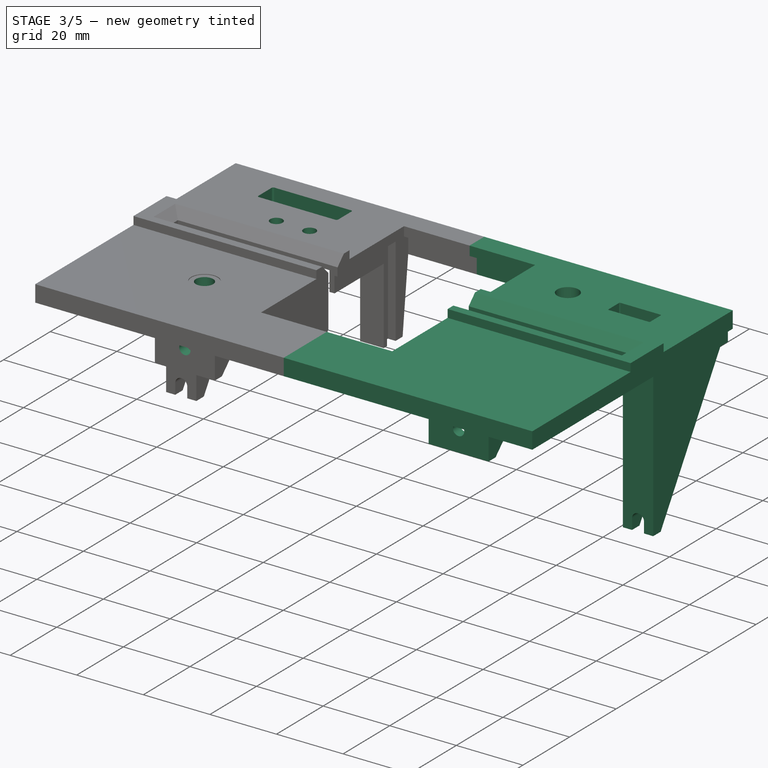
[diagram: stage 3 of 5 — iso view after this stage's code; geometry added in this stage tinted green]
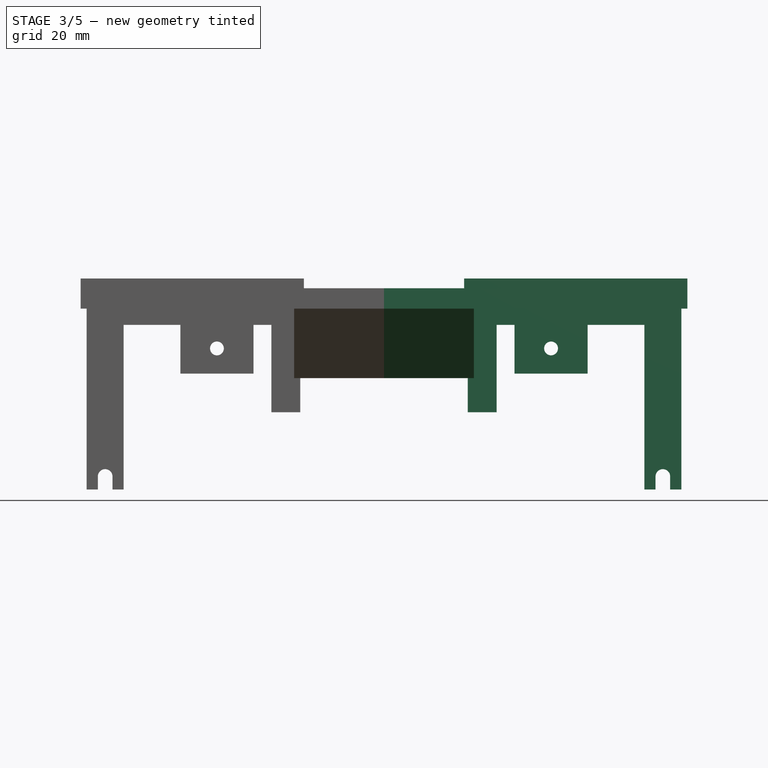
[diagram: stage 3 of 5 — front view after this stage's code; geometry added in this stage tinted green]
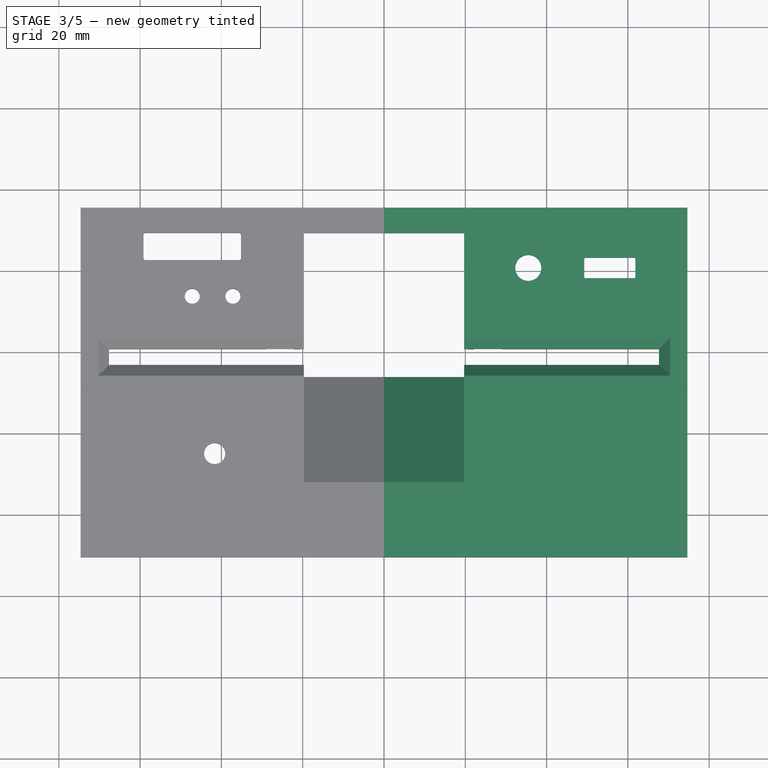
[diagram: stage 3 of 5 — top view after this stage's code; geometry added in this stage tinted green]
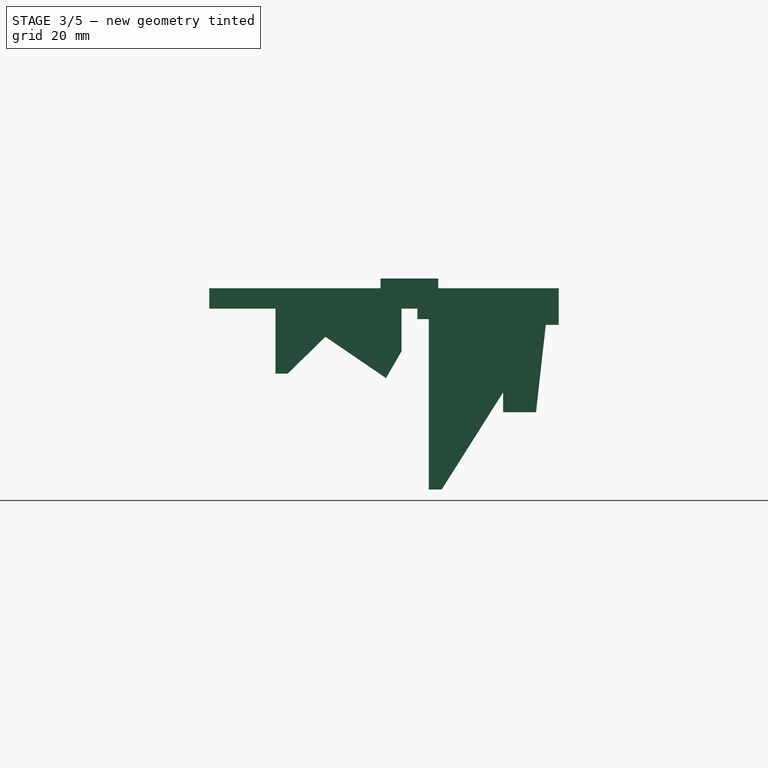
[diagram: stage 3 of 5 — right view after this stage's code; geometry added in this stage tinted green]
FEATURE [Sketcher::SketchObject] Sketch015
  ExternalGeometry = -> [Pad006]
  FullyConstrained = true
  MapMode = 5
  Placement = pos=(0,-34.9,0) rot=(1,0,0;1.5708rad)
  Support = -> [Pad006]
  sketch-geometry (1):
    g0: Circle CenterX=-41.1 CenterY=-9.8 CenterZ=0 NormalX=0 NormalY=0 NormalZ=1 AngleXU=0 Radius=1.7
  constraints (3):
    c: PointOnObject(g0,g-3)
    c: Diameter(g0) = 3.4
    c: DistanceY(g0,g-3) = 9.8
FEATURE [PartDesign::Pocket] Pocket008
  BaseFeature = -> Pad006
  Direction = (0,1,-2e-16)
  Length = 5
  Length2 = 5
  Profile = -> Sketch015
  ReferenceAxis = -> Sketch015 [N_Axis]
  Type = 1
FEATURE [Sketcher::SketchObject] Sketch016
  ExternalGeometry = -> [Pocket008]
  FullyConstrained = true
  MapMode = 5
  Placement = pos=(-50.1,0,0) rot=(0.57735,-0.57735,-0.57735;2.0944rad)
  Support = -> [Pocket008]
  sketch-geometry (3):
    g0: LineSegment StartX=15.5 StartY=0 StartZ=0 EndX=15.5 EndY=-16 EndZ=0
    g1: LineSegment StartX=15.5 StartY=-16 StartZ=0 EndX=31.9 EndY=-16 EndZ=0
    g2: LineSegment StartX=31.9 StartY=-16 StartZ=0 EndX=15.5 EndY=0 EndZ=0
  constraints (6):
    c: Coincident(g0,g-4)
    c: Coincident(g0,g-5)
    c: Coincident(g1,g0)
    c: Coincident(g1,g-3)
    c: Coincident(g2,g1)
    c: Coincident(g2,g0)
FEATURE [PartDesign::Pocket] Pocket009
  BaseFeature = -> Pocket008
  Direction = (1,0,0)
  Length = 18
  Length2 = 5
  Profile = -> Sketch016
  ReferenceAxis = -> Sketch016 [N_Axis]
  Type = 0
FEATURE [PartDesign::Mirrored] Mirrored
  BaseFeature = -> Pocket009
  MirrorPlane = -> YZ_Plane
  Originals = -> [Pocket009,Pad,Pocket,Chamfer,Pad001,Pad002,Pad003,Pocket001,Pad004,Pocket002,Pocket003,Pad005,Pocket004,Pocket005,Pocket006,Pocket007,Pad006,Pocket008]
FEATURE [Sketcher::SketchObject] Sketch017
  ExternalGeometry = -> [Mirrored]
  FullyConstrained = true
  MapMode = 5
  Placement = pos=(0,0,5) rot=(0,0,1;0rad)
  Support = -> [Mirrored]
  sketch-geometry (1):
    g0: Circle CenterX=-41.65 CenterY=-25.7 CenterZ=0 NormalX=0 NormalY=0 NormalZ=1 AngleXU=0 Radius=4
  constraints (3):
    c: Diameter(g0) = 8
    c: DistanceY(g-3,g0) = 25.5
    c: DistanceX(g-3,g0) = 33
FEATURE [PartDesign::Pocket] Pocket010
  BaseFeature = -> Mirrored
  Direction = (0,0,-1)
  Length = 0.2
  Length2 = 5
  Profile = -> Sketch017
  ReferenceAxis = -> Sketch017 [N_Axis]
  Type = 0
FEATURE [Sketcher::SketchObject] Sketch018
  ExternalGeometry = -> [Pocket010]
  FullyConstrained = true
  MapMode = 5
  Placement = pos=(0,0,4.8) rot=(0,0,1;0rad)
  Support = -> [Pocket010]
  sketch-geometry (1):
    g0: Circle CenterX=-41.65 CenterY=-25.7 CenterZ=0 NormalX=0 NormalY=0 NormalZ=1 AngleXU=0 Radius=2.6
  constraints (2):
    c: Coincident(g0,g-3)
    c: Diameter(g0) = 5.2
FEATURE [PartDesign::Pocket] Pocket011
  BaseFeature = -> Pocket010
  Direction = (0,0,-1)
  Length = 5
  Length2 = 5
  Profile = -> Sketch018
  ReferenceAxis = -> Sketch018 [N_Axis]
  Type = 0
FEATURE [Sketcher::SketchObject] Sketch019
  ExternalGeometry = -> [Pocket011]
  FullyConstrained = true
  MapMode = 5
  Placement = pos=(0,0,5) rot=(0,0,1;0rad)
  Support = -> [Pocket011]
  sketch-geometry (71):
    g0: LineSegment StartX=-67.025 StartY=30.95 StartZ=0 EndX=-28.525 EndY=30.95 EndZ=0
    g1: LineSegment StartX=-28.525 StartY=30.95 StartZ=0 EndX=-28.525 EndY=18.75 EndZ=0
    g2: LineSegment StartX=-28.525 StartY=18.75 StartZ=0 EndX=-67.025 EndY=18.75 EndZ=0
    g3: LineSegment StartX=-67.025 StartY=18.75 StartZ=0 EndX=-67.025 EndY=30.95 EndZ=0
    g4: LineSegment StartX=29.65 StartY=26.35 StartZ=0 EndX=41.35 EndY=26.35 EndZ=0
    g5: LineSegment StartX=41.35 StartY=26.35 StartZ=0 EndX=41.35 EndY=13.6 EndZ=0
    g6: LineSegment StartX=41.35 StartY=13.6 StartZ=0 EndX=29.65 EndY=13.6 EndZ=0
    g7: LineSegment StartX=29.65 StartY=13.6 StartZ=0 EndX=29.65 EndY=26.35 EndZ=0
    g8: LineSegment StartX=29.65 StartY=13.6 StartZ=0 EndX=35.5 EndY=19.975 EndZ=0
    g9: LineSegment StartX=35.5 StartY=19.975 StartZ=0 EndX=41.35 EndY=26.35 EndZ=0
    g10: Circle CenterX=35.5 CenterY=19.975 CenterZ=0 NormalX=0 NormalY=0 NormalZ=1 AngleXU=0 Radius=3.2
    g11: LineSegment StartX=35.5 StartY=19.975 StartZ=0 EndX=35.5 EndY=5.15 EndZ=0
    g12: LineSegment StartX=35.5 StartY=19.975 StartZ=0 EndX=35.5 EndY=34.8 EndZ=0
    g13: LineSegment StartX=-58.675 StartY=28.1 StartZ=0 EndX=-35.675 EndY=28.1 EndZ=0
    g14: LineSegment StartX=-35.675 StartY=28.1 StartZ=0 EndX=-35.675 EndY=22.4 EndZ=0
    g15: LineSegment StartX=-35.675 StartY=22.4 StartZ=0 EndX=-58.675 EndY=22.4 EndZ=0
    g16: LineSegment StartX=-58.675 StartY=22.4 StartZ=0 EndX=-58.675 EndY=28.1 EndZ=0
    g17: LineSegment StartX=49.515 StartY=22.25 StartZ=0 EndX=61.585 EndY=22.25 EndZ=0
    g18: LineSegment StartX=61.585 StartY=22.25 StartZ=0 EndX=61.585 EndY=17.7 EndZ=0
    g19: LineSegment StartX=61.585 StartY=17.7 StartZ=0 EndX=49.515 EndY=17.7 EndZ=0
    g20: LineSegment StartX=49.515 StartY=17.7 StartZ=0 EndX=49.515 EndY=22.25 EndZ=0
    g21: LineSegment StartX=-50.925 StartY=16.75 StartZ=0 EndX=-43.425 EndY=16.75 EndZ=0
    g22: LineSegment StartX=-43.425 StartY=16.75 StartZ=0 EndX=-43.425 EndY=9.25 EndZ=0
    g23: LineSegment StartX=-43.425 StartY=9.25 StartZ=0 EndX=-50.925 EndY=9.25 EndZ=0
    g24: LineSegment StartX=-50.925 StartY=9.25 StartZ=0 EndX=-50.925 EndY=16.75 EndZ=0
    g25: LineSegment StartX=-40.925 StartY=16.75 StartZ=0 EndX=-33.425 EndY=16.75 EndZ=0
    g26: LineSegment StartX=-33.425 StartY=16.75 StartZ=0 EndX=-33.425 EndY=9.25 EndZ=0
    g27: LineSegment StartX=-33.425 StartY=9.25 StartZ=0 EndX=-40.925 EndY=9.25 EndZ=0
    g28: LineSegment StartX=-40.925 StartY=9.25 StartZ=0 EndX=-40.925 EndY=16.75 EndZ=0
    g29: LineSegment StartX=-50.925 StartY=9.25 StartZ=0 EndX=-47.175 EndY=13 EndZ=0
    g30: LineSegment StartX=-47.175 StartY=13 StartZ=0 EndX=-43.425 EndY=16.75 EndZ=0
    g31: LineSegment StartX=-40.925 StartY=9.25 StartZ=0 EndX=-37.175 EndY=13 EndZ=0
    g32: LineSegment StartX=-37.175 StartY=13 StartZ=0 EndX=-33.425 EndY=16.75 EndZ=0
    g33: LineSegment StartX=-47.175 StartY=13 StartZ=0 EndX=-37.175 EndY=13 EndZ=0
    g34: LineSegment StartX=-58.675 StartY=22.4 StartZ=0 EndX=-47.175 EndY=25.25 EndZ=0
    g35: LineSegment StartX=-47.175 StartY=25.25 StartZ=0 EndX=-35.675 EndY=28.1 EndZ=0
    g36: LineSegment StartX=-59.175 StartY=28.1 StartZ=0 EndX=-59.175 EndY=22.4 EndZ=0
    g37: LineSegment StartX=-58.675 StartY=21.9 StartZ=0 EndX=-35.675 EndY=21.9 EndZ=0
    g38: LineSegment StartX=-35.175 StartY=22.4 StartZ=0 EndX=-35.175 EndY=28.1 EndZ=0
    g39: LineSegment StartX=-35.675 StartY=28.6 StartZ=0 EndX=-58.675 EndY=28.6 EndZ=0
    g40: GeomPoint X=-47.175 Y=25.25 Z=0
    g41: ArcOfCircle CenterX=-58.675 CenterY=28.1 CenterZ=0 NormalX=0 NormalY=0 NormalZ=1 AngleXU=0 Radius=0.5 StartAngle=1.5708 EndAngle=3.14159
    g42: ArcOfCircle CenterX=-58.675 CenterY=22.4 CenterZ=0 NormalX=0 NormalY=0 NormalZ=1 AngleXU=0 Radius=0.5 StartAngle=3.14159 EndAngle=4.71239
    g43: ArcOfCircle CenterX=-35.675 CenterY=22.4 CenterZ=0 NormalX=0 NormalY=0 NormalZ=1 AngleXU=0 Radius=0.5 StartAngle=4.71239 EndAngle=6.28319
    g44: ArcOfCircle CenterX=-35.675 CenterY=28.1 CenterZ=0 NormalX=0 NormalY=0 NormalZ=1 AngleXU=0 Radius=0.5 StartAngle=2.2e-15 EndAngle=1.5708
    g45: LineSegment StartX=-58.675 StartY=28.1 StartZ=0 EndX=-47.175 EndY=25.25 EndZ=0
    g46: LineSegment StartX=-47.175 StartY=25.25 StartZ=0 EndX=-35.675 EndY=22.4 EndZ=0
    g47: LineSegment StartX=-74.65 StartY=5.15 StartZ=0 EndX=-47.175 EndY=25.25 EndZ=0
    g48: LineSegment StartX=-47.175 StartY=25.25 StartZ=0 EndX=-19.7 EndY=5.15 EndZ=0
    g49: Circle CenterX=-47.175 CenterY=13 CenterZ=0 NormalX=0 NormalY=0 NormalZ=1 AngleXU=0 Radius=1.85
    g50: Circle CenterX=-37.175 CenterY=13 CenterZ=0 NormalX=0 NormalY=0 NormalZ=1 AngleXU=0 Radius=1.85
    g51: LineSegment StartX=35.5 StartY=19.975 StartZ=0 EndX=49.515 EndY=17.7 EndZ=0
    g52: LineSegment StartX=35.5 StartY=19.975 StartZ=0 EndX=49.515 EndY=22.25 EndZ=0
    g53: LineSegment StartX=61.585 StartY=22.25 StartZ=0 EndX=64.05 EndY=19.975 EndZ=0
    g54: LineSegment StartX=64.05 StartY=19.975 StartZ=0 EndX=61.585 EndY=17.7 EndZ=0
    g55: LineSegment StartX=49.515 StartY=17.7 StartZ=0 EndX=55.55 EndY=19.975 EndZ=0
    g56: LineSegment StartX=55.55 StartY=19.975 StartZ=0 EndX=61.585 EndY=22.25 EndZ=0
    g57: LineSegment StartX=49.265 StartY=22.25 StartZ=0 EndX=49.265 EndY=17.7 EndZ=0
    g58: LineSegment StartX=49.515 StartY=17.45 StartZ=0 EndX=61.585 EndY=17.45 EndZ=0
    g59: LineSegment StartX=61.835 StartY=17.7 StartZ=0 EndX=61.835 EndY=22.25 EndZ=0
    g60: LineSegment StartX=61.585 StartY=22.5 StartZ=0 EndX=49.515 EndY=22.5 EndZ=0
    g61: GeomPoint X=55.55 Y=19.975 Z=0
    g62: ArcOfCircle CenterX=49.515 CenterY=22.25 CenterZ=0 NormalX=0 NormalY=0 NormalZ=1 AngleXU=0 Radius=0.25 StartAngle=1.5708 EndAngle=3.14159
    g63: ArcOfCircle CenterX=49.515 CenterY=17.7 CenterZ=0 NormalX=0 NormalY=0 NormalZ=1 AngleXU=0 Radius=0.25 StartAngle=3.14159 EndAngle=4.71239
    g64: ArcOfCircle CenterX=61.585 CenterY=17.7 CenterZ=0 NormalX=0 NormalY=0 NormalZ=1 AngleXU=0 Radius=0.25 StartAngle=4.71239 EndAngle=6.28319
    g65: ArcOfCircle CenterX=61.585 CenterY=22.25 CenterZ=0 NormalX=0 NormalY=0 NormalZ=1 AngleXU=0 Radius=0.25 StartAngle=-2.7e-15 EndAngle=1.5708
    g66: LineSegment StartX=49.515 StartY=22.25 StartZ=0 EndX=55.55 EndY=19.975 EndZ=0
    g67: LineSegment StartX=55.55 StartY=19.975 StartZ=0 EndX=61.585 EndY=17.7 EndZ=0
    g68: Circle CenterX=-57.175 CenterY=13 CenterZ=0 NormalX=0 NormalY=0 NormalZ=1 AngleXU=0 Radius=1.55
    g69: LineSegment StartX=-57.175 StartY=13 StartZ=0 EndX=-58.675 EndY=22.4 EndZ=0
    g70: LineSegment StartX=-37.175 StartY=13 StartZ=0 EndX=-35.675 EndY=22.4 EndZ=0
  constraints (179):
    c: Coincident(g0,g1)
    c: Coincident(g1,g2)
    c: Coincident(g2,g3)
    c: Coincident(g3,g0)
    c: Horizontal(g0)
    c: Horizontal(g2)
    c: Vertical(g1)
    c: Vertical(g3)
    c: DistanceX(g0,g0) = 38.5
    c: DistanceY(g3,g3) = 12.2
    c: Coincident(g4,g5)
    c: Coincident(g5,g6)
    c: Coincident(g6,g7)
    c: Coincident(g7,g4)
    c: Horizontal(g4)
    c: Horizontal(g6)
    c: Vertical(g5)
    c: Vertical(g7)
    c: DistanceY(g7,g7) = 12.75
    c: DistanceX(g4,g4) = 11.7
    c: Coincident(g8,g6)
    c: Coincident(g9,g8)
    c: Coincident(g9,g4)
    c: PointOnObject(g8,g9)
    c: Equal(g9,g8)
    c: Coincident(g10,g8)
    c: Diameter(g10) = 6.4
    c: Coincident(g11,g10)
    c: PointOnObject(g11,g-5)
    c: Vertical(g11)
    c: Coincident(g12,g10)
    c: PointOnObject(g12,g-4)
    c: Vertical(g12)
    c: Equal(g12,g11)
    c: DistanceX(g-3,g10) = 6.5
    c: Coincident(g13,g14)
    c: Coincident(g14,g15)
    c: Coincident(g15,g16)
    c: Coincident(g16,g13)
    c: Horizontal(g13)
    c: Horizontal(g15)
    c: Vertical(g14)
    c: Vertical(g16)
    c: Coincident(g17,g18)
    c: Coincident(g18,g19)
    c: Coincident(g19,g20)
    c: Coincident(g20,g17)
    c: Horizontal(g17)
    c: Horizontal(g19)
    c: Vertical(g18)
    c: Vertical(g20)
    c: DistanceY(g20,g20) = 4.55
    c: DistanceX(g17,g17) = 12.07
    c: Coincident(g21,g22)
    c: Coincident(g22,g23)
    c: Coincident(g23,g24)
    c: Coincident(g24,g21)
    c: Horizontal(g21)
    c: Horizontal(g23)
    c: Vertical(g22)
    c: Vertical(g24)
    c: Coincident(g25,g26)
    c: Coincident(g26,g27)
    c: Coincident(g27,g28)
    c: Coincident(g28,g25)
    c: Horizontal(g25)
    c: Horizontal(g27)
    c: Vertical(g26)
    c: Vertical(g28)
    c: Equal(g27,g26)
    c: Equal(g26,g23)
    c: Equal(g23,g22)
    c: Coincident(g29,g23)
    c: Coincident(g30,g29)
    c: Coincident(g30,g21)
    c: Coincident(g31,g27)
    c: Coincident(g32,g31)
    c: Coincident(g32,g25)
    c: PointOnObject(g27,g32)
    c: PointOnObject(g21,g29)
    c: Equal(g30,g29)
    c: Equal(g31,g32)
    c: DistanceX(g23,g23) = 7.5
    c: Coincident(g33,g29)
    c: Coincident(g33,g31)
    c: Horizontal(g33)
    c: Coincident(g34,g15)
    c: Coincident(g35,g34)
    c: Coincident(g35,g13)
    c: Equal(g35,g34)
    c: PointOnObject(g13,g34)
    c: Horizontal(g37)
    c: Horizontal(g39)
    c: Vertical(g36)
    c: Vertical(g38)
    c: Coincident(g40,g34)
    c: Tangent(g39,g41) = -1.5708
    c: Tangent(g36,g41) = -1.5708
    c: Tangent(g36,g42) = -1.5708
    c: Tangent(g37,g42) = -1.5708
    c: Tangent(g37,g43) = -1.5708
    c: Tangent(g38,g43) = -1.5708
    c: Tangent(g38,g44) = -1.5708
    c: Tangent(g39,g44) = -1.5708
    c: Equal(g44,g41)
    c: Equal(g41,g42)
    c: Equal(g42,g43)
    c: Diameter(g41) = 1
    c: Coincident(g45,g41)
    c: Coincident(g45,g34)
    c: Coincident(g46,g34)
    c: Coincident(g46,g43)
    c: Equal(g46,g45)
    c: PointOnObject(g43,g45)
    c: Coincident(g47,g-6)
    c: Coincident(g48,g47)
    c: Coincident(g48,g-7)
    c: Equal(g48,g47)
    c: Coincident(g47,g34)
    c: Coincident(g41,g13)
    c: Coincident(g49,g29)
    c: Coincident(g50,g31)
    c: Equal(g50,g49)
    c: Diameter(g49) = 3.7
    c: DistanceY(g25,g1) = 2
    c: DistanceX(g33,g33) = 10
    c: Coincident(g51,g10)
    c: Coincident(g51,g19)
    c: Coincident(g52,g10)
    c: Coincident(g52,g17)
    c: Equal(g51,g52)
    c: Coincident(g53,g17)
    c: Coincident(g54,g53)
    c: Coincident(g54,g18)
    c: Equal(g53,g54)
    c: Coincident(g55,g19)
    c: Coincident(g56,g55)
    c: Coincident(g56,g17)
    c: PointOnObject(g19,g56)
    c: Equal(g55,g56)
    c: Horizontal(g58)
    c: Horizontal(g60)
    c: Vertical(g57)
    c: Vertical(g59)
    c: Coincident(g61,g55)
    c: Tangent(g60,g62) = -1.5708
    c: Tangent(g57,g62) = -1.5708
    c: Tangent(g57,g63) = -1.5708
    c: Tangent(g58,g63) = -1.5708
    c: Tangent(g58,g64) = -1.5708
    c: Tangent(g59,g64) = -1.5708
    c: Tangent(g60,g65) = -1.5708
    c: Tangent(g59,g65) = -1.5708
    c: Equal(g65,g64)
    c: Equal(g64,g63)
    c: Equal(g63,g62)
    c: Diameter(g62) = 0.5
    c: Coincident(g66,g62)
    c: Coincident(g66,g55)
    c: Coincident(g67,g55)
    c: Coincident(g67,g64)
    c: Equal(g67,g66)
    c: PointOnObject(g64,g66)
    c: Coincident(g62,g17)
    c: PointOnObject(g53,g-9)
    c: PointOnObject(g68,g33)
    c: Diameter(g68) = 3.1
    c: DistanceX(g68,g49) = 10
    c: Coincident(g69,g68)
    c: Coincident(g69,g42)
    c: Coincident(g70,g50)
    c: Coincident(g70,g43)
    c: Equal(g70,g69)
    c: DistanceX(g36,g38) = 24
    c: DistanceY(g49,g34) = 12.25
    c: DistanceY(g48,g34) = 20.1
    c: DistanceY(g37,g39) = 6.7
    c: DistanceX(g55,g-4) = 19.1
    c: DistanceX(g34,g1) = 18.65
FEATURE [Sketcher::SketchObject] Sketch020
  ExternalGeometry = -> [Pocket011]
  FullyConstrained = true
  MapMode = 5
  Placement = pos=(50.1,-1.1e-14,1.1e-14) rot=(0.57735,0.57735,0.57735;2.0944rad)
  Support = -> [Pocket011]
  sketch-geometry (3):
    g0: LineSegment StartX=-31.9 StartY=-16 StartZ=0 EndX=-15.5 EndY=0 EndZ=0
    g1: LineSegment StartX=-15.5 StartY=0 StartZ=0 EndX=-15.5 EndY=-16 EndZ=0
    g2: LineSegment StartX=-15.5 StartY=-16 StartZ=0 EndX=-31.9 EndY=-16 EndZ=0
  constraints (6):
    c: Coincident(g0,g-3)
    c: Coincident(g0,g-5)
    c: Coincident(g1,g-5)
    c: Coincident(g2,g1)
    c: Coincident(g2,g0)
    c: Coincident(g0,g1)
FEATURE [PartDesign::Pocket] Pocket012
  BaseFeature = -> Pocket011
  Direction = (-1,2e-16,-2e-16)
  Length = 18
  Length2 = 5
  Profile = -> Sketch020
  ReferenceAxis = -> Sketch020 [N_Axis]
  Type = 0
FEATURE [PartDesign::Pocket] Pocket013
  BaseFeature = -> Pocket012
  Direction = (0,0,-1)
  Length = 5
  Length2 = 5
  Profile = -> Sketch019
  ReferenceAxis = -> Sketch019 [N_Axis]
  Type = 0
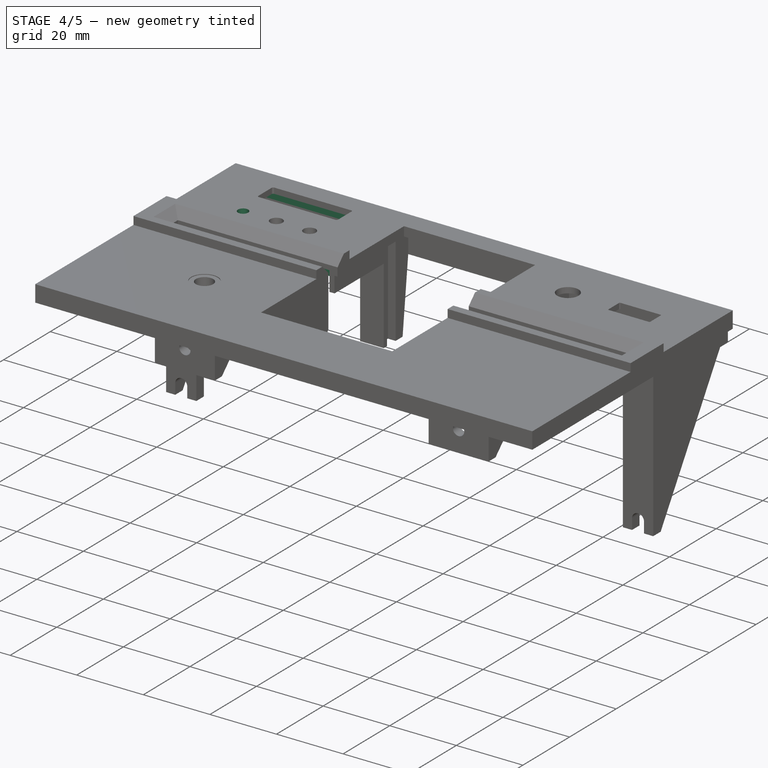
[diagram: stage 4 of 5 — iso view after this stage's code; geometry added in this stage tinted green]
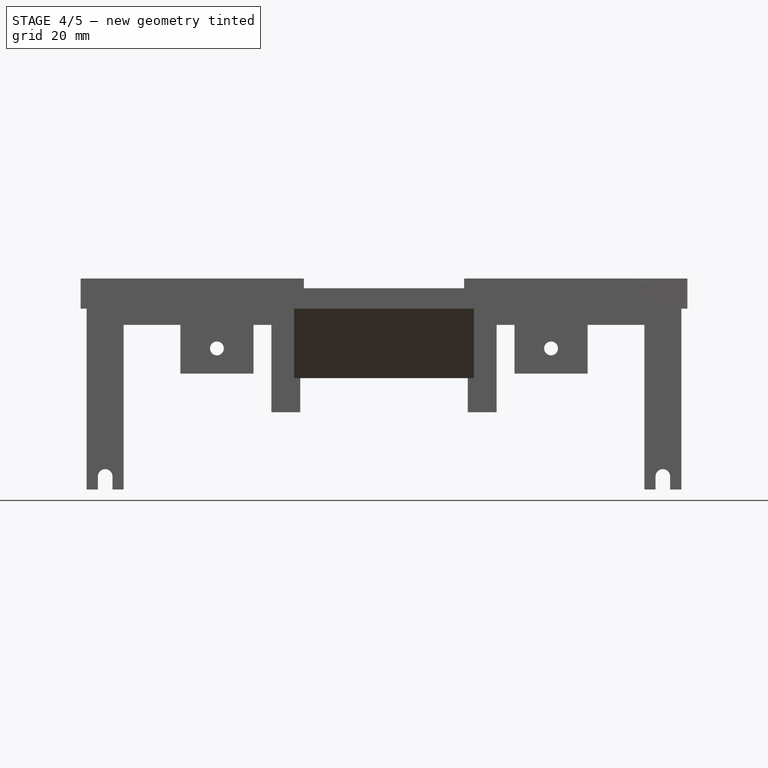
[diagram: stage 4 of 5 — front view after this stage's code; geometry added in this stage tinted green]
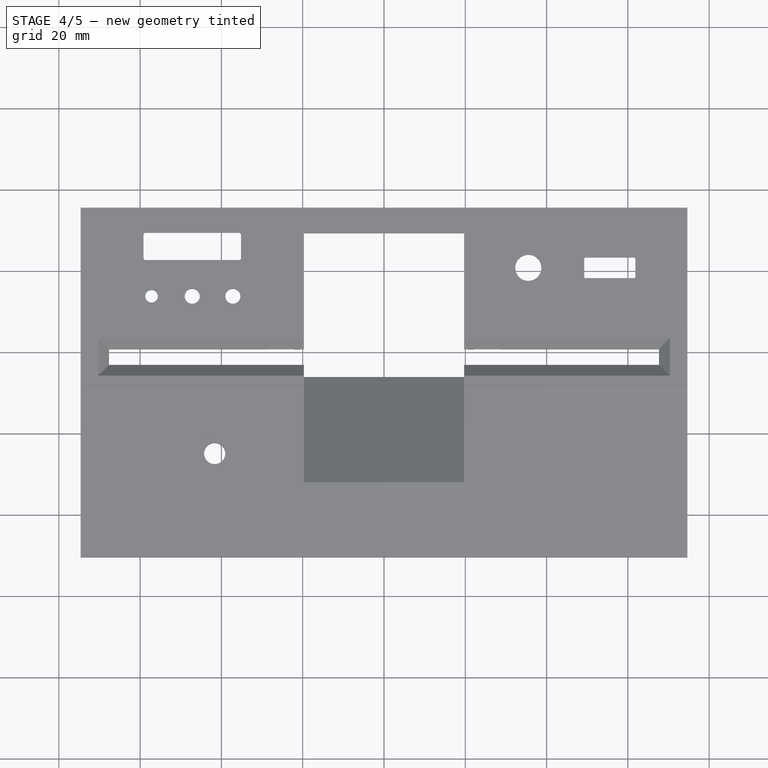
[diagram: stage 4 of 5 — top view after this stage's code; geometry added in this stage tinted green]
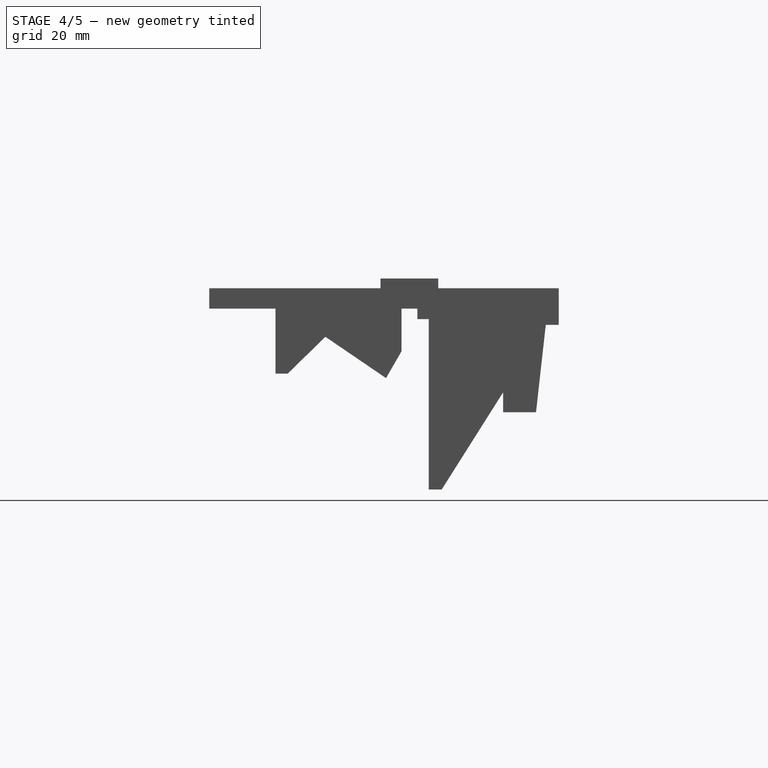
[diagram: stage 4 of 5 — right view after this stage's code; geometry added in this stage tinted green]
FEATURE [Sketcher::SketchObject] Sketch021
  ExternalGeometry = -> [Pocket013]
  FullyConstrained = true
  MapMode = 5
  Placement = pos=(0,0,1e-16) rot=(1,0,0;3.14159rad)
  Support = -> [Pocket013]
  sketch-geometry (8):
    g0: LineSegment StartX=64.05 StartY=-31.6 StartZ=0 EndX=70.05 EndY=-31.6 EndZ=0
    g1: LineSegment StartX=70.05 StartY=-31.6 StartZ=0 EndX=70.05 EndY=-6 EndZ=0
    g2: LineSegment StartX=70.05 StartY=-6 StartZ=0 EndX=64.05 EndY=-6 EndZ=0
    g3: LineSegment StartX=64.05 StartY=-6 StartZ=0 EndX=64.05 EndY=-31.6 EndZ=0
    g4: LineSegment StartX=-64.05 StartY=-31.6 StartZ=0 EndX=-70.05 EndY=-31.6 EndZ=0
    g5: LineSegment StartX=-70.05 StartY=-31.6 StartZ=0 EndX=-70.05 EndY=-6 EndZ=0
    g6: LineSegment StartX=-70.05 StartY=-6 StartZ=0 EndX=-64.05 EndY=-6 EndZ=0
    g7: LineSegment StartX=-64.05 StartY=-6 StartZ=0 EndX=-64.05 EndY=-31.6 EndZ=0
  constraints (22):
    c: Coincident(g0,g1)
    c: Coincident(g1,g2)
    c: Coincident(g2,g3)
    c: Coincident(g3,g0)
    c: Horizontal(g0)
    c: Horizontal(g2)
    c: Vertical(g1)
    c: Vertical(g3)
    c: Coincident(g0,g-3)
    c: PointOnObject(g-3,g2)
    c: Coincident(g4,g5)
    c: Coincident(g5,g6)
    c: Coincident(g6,g7)
    c: Coincident(g7,g4)
    c: Horizontal(g4)
    c: Horizontal(g6)
    c: Vertical(g5)
    c: Vertical(g7)
    c: Coincident(g4,g-4)
    c: PointOnObject(g-4,g6)
    c: Equal(g6,g2)
    c: DistanceX(g0,g0) = 6
FEATURE [PartDesign::Pocket] Pocket014
  BaseFeature = -> Pocket013
  Direction = (-2e-16,0,1)
  Length = 55
  Length2 = 5
  Profile = -> Sketch021
  ReferenceAxis = -> Sketch021 [N_Axis]
  Reversed = true
  Type = 0
FEATURE [Sketcher::SketchObject] Sketch022
  ExternalGeometry = -> [Pocket014]
  FullyConstrained = true
  MapMode = 5
  Placement = pos=(0,0,0) rot=(1,0,0;3.14159rad)
  Support = -> [Pocket014]
  sketch-geometry (8):
    g0: LineSegment StartX=-70.05 StartY=-6 StartZ=0 EndX=-27.7 EndY=-6 EndZ=0
    g1: LineSegment StartX=-27.7 StartY=-6 StartZ=0 EndX=-27.7 EndY=-31.6 EndZ=0
    g2: LineSegment StartX=-27.7 StartY=-31.6 StartZ=0 EndX=-70.05 EndY=-31.6 EndZ=0
    g3: LineSegment StartX=-70.05 StartY=-31.6 StartZ=0 EndX=-70.05 EndY=-6 EndZ=0
    g4: LineSegment StartX=70.05 StartY=-6 StartZ=0 EndX=27.7 EndY=-6 EndZ=0
    g5: LineSegment StartX=27.7 StartY=-6 StartZ=0 EndX=27.7 EndY=-31.6 EndZ=0
    g6: LineSegment StartX=27.7 StartY=-31.6 StartZ=0 EndX=70.05 EndY=-31.6 EndZ=0
    g7: LineSegment StartX=70.05 StartY=-31.6 StartZ=0 EndX=70.05 EndY=-6 EndZ=0
  constraints (20):
    c: Coincident(g0,g1)
    c: Coincident(g1,g2)
    c: Coincident(g2,g3)
    c: Coincident(g3,g0)
    c: Horizontal(g0)
    c: Horizontal(g2)
    c: Vertical(g1)
    c: Vertical(g3)
    c: Coincident(g0,g-6)
    c: Coincident(g1,g-5)
    c: Coincident(g4,g5)
    c: Coincident(g5,g6)
    c: Coincident(g6,g7)
    c: Coincident(g7,g4)
    c: Horizontal(g4)
    c: Horizontal(g6)
    c: Vertical(g5)
    c: Vertical(g7)
    c: Coincident(g4,g-3)
    c: Coincident(g5,g-4)
FEATURE [PartDesign::Pocket] Pocket015
  BaseFeature = -> Pocket014
  Direction = (0,0,1)
  Length = 0
  Length2 = 5
  Profile = -> Sketch022
  ReferenceAxis = -> Sketch022 [N_Axis]
  Type = 3
  UpToFace = -> Pocket014 [Face53]
FEATURE [Sketcher::SketchObject] Sketch023
  ExternalGeometry = -> [Pocket015]
  FullyConstrained = true
  MapMode = 5
  Placement = pos=(0,0,5) rot=(0,0,1;0rad)
  Support = -> [Pocket015]
  sketch-geometry (2):
    g0: Circle CenterX=-57.175 CenterY=13 CenterZ=0 NormalX=0 NormalY=0 NormalZ=1 AngleXU=0 Radius=1.55
    g1: LineSegment StartX=-57.175 StartY=13 StartZ=0 EndX=-47.175 EndY=13 EndZ=0
  constraints (5):
    c: Coincident(g1,g0)
    c: Coincident(g1,g-3)
    c: Horizontal(g1)
    c: DistanceX(g1,g1) = 10
    c: Diameter(g0) = 3.1
FEATURE [PartDesign::Pocket] Pocket016
  BaseFeature = -> Pocket015
  Direction = (0,0,-1)
  Length = 5
  Length2 = 5
  Profile = -> Sketch023
  ReferenceAxis = -> Sketch023 [N_Axis]
  Type = 0
FEATURE [Sketcher::SketchObject] Sketch024
  ExternalGeometry = -> [Pocket016]
  FullyConstrained = true
  MapMode = 5
  Placement = pos=(-7.2e-15,-32.8,0) rot=(0,0.707107,0.707107;3.14159rad)
  Support = -> [Pocket016]
  sketch-geometry (8):
    g0: LineSegment StartX=-29 StartY=3.3 StartZ=0 EndX=-22.1 EndY=3.3 EndZ=0
    g1: LineSegment StartX=-22.1 StartY=3.3 StartZ=0 EndX=-22.1 EndY=0 EndZ=0
    g2: LineSegment StartX=-22.1 StartY=0 StartZ=0 EndX=-29 EndY=0 EndZ=0
    g3: LineSegment StartX=-29 StartY=0 StartZ=0 EndX=-29 EndY=3.3 EndZ=0
    g4: LineSegment StartX=22.1 StartY=3.3 StartZ=0 EndX=29 EndY=3.3 EndZ=0
    g5: LineSegment StartX=29 StartY=3.3 StartZ=0 EndX=29 EndY=0 EndZ=0
    g6: LineSegment StartX=29 StartY=0 StartZ=0 EndX=22.1 EndY=0 EndZ=0
    g7: LineSegment StartX=22.1 StartY=0 StartZ=0 EndX=22.1 EndY=3.3 EndZ=0
  constraints (20):
    c: Coincident(g0,g1)
    c: Coincident(g1,g2)
    c: Coincident(g2,g3)
    c: Coincident(g3,g0)
    c: Horizontal(g2)
    c: Vertical(g1)
    c: Vertical(g3)
    c: Coincident(g0,g-3)
    c: PointOnObject(g1,g-1)
    c: Coincident(g4,g5)
    c: Coincident(g5,g6)
    c: Coincident(g6,g7)
    c: Coincident(g7,g4)
    c: Horizontal(g6)
    c: Vertical(g5)
    c: Vertical(g7)
    c: Coincident(g4,g-4)
    c: PointOnObject(g5,g-1)
    c: Coincident(g0,g-3)
    c: Coincident(g4,g-4)
FEATURE [PartDesign::Pad] Pad007
  BaseFeature = -> Pocket016
  Direction = (2e-16,1,-2e-16)
  Length = 14
  Length2 = 10
  Profile = -> Sketch024
  ReferenceAxis = -> Sketch024 [N_Axis]
  Type = 0
FEATURE [Sketcher::SketchObject] Sketch025
  FullyConstrained = true
  MapMode = 5
  Placement = pos=(-7e-16,0,3.3) rot=(1,0,0;3.14159rad)
  Support = -> [Pad007]
FEATURE [Sketcher::SketchObject] Sketch026
  ExternalGeometry = -> [Pad007]
  FullyConstrained = true
  MapMode = 5
  Placement = pos=(-7e-16,0,3.3) rot=(1,0,0;3.14159rad)
  Support = -> [Pad007]
  sketch-geometry (20):
    g0: LineSegment StartX=-29 StartY=18.8 StartZ=0 EndX=-22.1 EndY=18.8 EndZ=0
    g1: LineSegment StartX=-22.1 StartY=18.8 StartZ=0 EndX=-22.1 EndY=3.9 EndZ=0
    g2: LineSegment StartX=-22.1 StartY=3.9 StartZ=0 EndX=-29 EndY=3.9 EndZ=0
    g3: LineSegment StartX=-29 StartY=3.9 StartZ=0 EndX=-29 EndY=18.8 EndZ=0
    g4: LineSegment StartX=22.1 StartY=18.8 StartZ=0 EndX=29 EndY=18.8 EndZ=0
    g5: LineSegment StartX=29 StartY=18.8 StartZ=0 EndX=29 EndY=3.9 EndZ=0
    g6: LineSegment StartX=29 StartY=3.9 StartZ=0 EndX=22.1 EndY=3.9 EndZ=0
    g7: LineSegment StartX=22.1 StartY=3.9 StartZ=0 EndX=22.1 EndY=18.8 EndZ=0
    g8: LineSegment StartX=-29 StartY=0 StartZ=0 EndX=-22.1 EndY=0 EndZ=0
    g9: LineSegment StartX=-27.7 StartY=-31.6 StartZ=0 EndX=-27.7 EndY=-21.1 EndZ=0
    g10: LineSegment StartX=-27.7 StartY=-31.6 StartZ=0 EndX=-29 EndY=-31.6 EndZ=0
    g11: LineSegment StartX=-29 StartY=-31.6 StartZ=0 EndX=-29 EndY=0 EndZ=0
    g12: LineSegment StartX=-27.7 StartY=-21.1 StartZ=0 EndX=-22.1 EndY=-21.1 EndZ=0
    g13: LineSegment StartX=-22.1 StartY=-21.1 StartZ=0 EndX=-22.1 EndY=0 EndZ=0
    g14: LineSegment StartX=22.1 StartY=0 StartZ=0 EndX=29 EndY=0 EndZ=0
    g15: LineSegment StartX=29 StartY=0 StartZ=0 EndX=29 EndY=-31.6 EndZ=0
    g16: LineSegment StartX=29 StartY=-31.6 StartZ=0 EndX=27.7 EndY=-31.6 EndZ=0
    g17: LineSegment StartX=27.7 StartY=-31.6 StartZ=0 EndX=27.7 EndY=-21.1 EndZ=0
    g18: LineSegment StartX=27.7 StartY=-21.1 StartZ=0 EndX=22.1 EndY=-21.1 EndZ=0
    g19: LineSegment StartX=22.1 StartY=-21.1 StartZ=0 EndX=22.1 EndY=0 EndZ=0
  constraints (50):
    c: Coincident(g0,g1)
    c: Coincident(g1,g2)
    c: Coincident(g2,g3)
    c: Coincident(g3,g0)
    c: Horizontal(g0)
    c: Horizontal(g2)
    c: Vertical(g1)
    c: Vertical(g3)
    c: Coincident(g0,g-3)
    c: Coincident(g1,g-6)
    c: Coincident(g4,g5)
    c: Coincident(g5,g6)
    c: Coincident(g6,g7)
    c: Coincident(g7,g4)
    c: Horizontal(g4)
    c: Horizontal(g6)
    c: Vertical(g5)
    c: Vertical(g7)
    c: Coincident(g4,g-8)
    c: Coincident(g5,g-7)
    c: PointOnObject(g8,g-1)
    c: PointOnObject(g8,g-1)
    c: Coincident(g9,g-5)
    c: Coincident(g9,g-9)
    c: Coincident(g10,g9)
    c: PointOnObject(g10,g-5)
    c: Coincident(g11,g10)
    c: Vertical(g11)
    c: Coincident(g8,g11)
    c: PointOnObject(g2,g11)
    c: Coincident(g12,g9)
    c: Coincident(g12,g-9)
    c: Coincident(g13,g12)
    c: Coincident(g13,g8)
    c: Vertical(g13)
    c: PointOnObject(g14,g-1)
    c: PointOnObject(g14,g-1)
    c: Coincident(g15,g14)
    c: PointOnObject(g15,g-4)
    c: Vertical(g15)
    c: Coincident(g16,g15)
    c: Coincident(g16,g-4)
    c: Coincident(g17,g16)
    c: Coincident(g17,g-10)
    c: Coincident(g18,g17)
    c: Coincident(g18,g-10)
    c: Coincident(g19,g18)
    c: Coincident(g19,g14)
    c: PointOnObject(g5,g15)
    c: Vertical(g19)
FEATURE [PartDesign::Pad] Pad008
  BaseFeature = -> Pad007
  Direction = (2e-16,0,-1)
  Length = 1.6
  Length2 = 10
  Profile = -> Sketch026
  ReferenceAxis = -> Sketch026 [N_Axis]
  Type = 0
FEATURE [Sketcher::SketchObject] Sketch027
  ExternalGeometry = -> [Pad008]
  FullyConstrained = true
  MapMode = 5
  Placement = pos=(-7e-16,0,3.3) rot=(1,0,0;3.14159rad)
  Support = -> [Pad008]
  sketch-geometry (9):
    g0: Circle CenterX=-57.175 CenterY=-13 CenterZ=0 NormalX=0 NormalY=0 NormalZ=1 AngleXU=0 Radius=1.55
    g1: Circle CenterX=-47.175 CenterY=-13 CenterZ=0 NormalX=0 NormalY=0 NormalZ=1 AngleXU=0 Radius=1.85
    g2: Circle CenterX=-37.175 CenterY=-13 CenterZ=0 NormalX=0 NormalY=0 NormalZ=1 AngleXU=0 Radius=1.85
    g3: LineSegment StartX=-29 StartY=-18.4 StartZ=0 EndX=-66.375 EndY=-18.4 EndZ=0
    g4: LineSegment StartX=-29 StartY=-18.4 StartZ=0 EndX=-29 EndY=-6 EndZ=0
    g5: LineSegment StartX=-29 StartY=-6 StartZ=0 EndX=-70.05 EndY=-6 EndZ=0
    g6: LineSegment StartX=-70.05 StartY=-31.6 StartZ=0 EndX=-70.05 EndY=-6 EndZ=0
    g7: LineSegment StartX=-70.05 StartY=-31.6 StartZ=0 EndX=-66.375 EndY=-31.6 EndZ=0
    g8: LineSegment StartX=-66.375 StartY=-31.6 StartZ=0 EndX=-66.375 EndY=-18.4 EndZ=0
  constraints (21):
    c: Coincident(g0,g-3)
    c: Tangent(g0,g-3)
    c: Coincident(g1,g-4)
    c: Coincident(g2,g-5)
    c: Equal(g-4,g1)
    c: Equal(g2,g-5)
    c: PointOnObject(g3,g-7)
    c: Horizontal(g3)
    c: Coincident(g4,g3)
    c: Coincident(g4,g-7)
    c: Coincident(g5,g4)
    c: DistanceX(g3,g-9) = 7.2
    c: DistanceY(g-11,g3) = 3.5
    c: Coincident(g-12,g5)
    c: Coincident(g6,g-6)
    c: Coincident(g6,g5)
    c: Coincident(g7,g6)
    c: Horizontal(g7)
    c: Coincident(g8,g7)
    c: Coincident(g8,g3)
    c: Vertical(g8)
FEATURE [PartDesign::Pad] Pad009
  BaseFeature = -> Pad008
  Direction = (2e-16,0,-1)
  Length = 2.5
  Length2 = 10
  Profile = -> Sketch027
  ReferenceAxis = -> Sketch027 [N_Axis]
  Type = 0
FEATURE [Sketcher::SketchObject] Sketch028
  ExternalGeometry = -> [Pad009]
  FullyConstrained = true
  MapMode = 5
  Placement = pos=(-4e-16,0,1.7) rot=(1,0,0;3.14159rad)
  Support = -> [Pad009]
  sketch-geometry (4):
    g0: LineSegment StartX=-29 StartY=-18.4 StartZ=0 EndX=-27.7 EndY=-18.4 EndZ=0
    g1: LineSegment StartX=-27.7 StartY=-18.4 StartZ=0 EndX=-27.7 EndY=-31.6 EndZ=0
    g2: LineSegment StartX=-27.7 StartY=-31.6 StartZ=0 EndX=-29 EndY=-31.6 EndZ=0
    g3: LineSegment StartX=-29 StartY=-31.6 StartZ=0 EndX=-29 EndY=-18.4 EndZ=0
  constraints (10):
    c: Coincident(g0,g1)
    c: Coincident(g1,g2)
    c: Coincident(g2,g3)
    c: Coincident(g3,g0)
    c: Horizontal(g0)
    c: Horizontal(g2)
    c: Vertical(g1)
    c: Vertical(g3)
    c: Coincident(g0,g-4)
    c: Coincident(g1,g-5)
FEATURE [PartDesign::Pocket] Pocket017
  BaseFeature = -> Pad009
  Direction = (-2e-16,0,1)
  Length = 0
  Length2 = 5
  Profile = -> Sketch028
  ReferenceAxis = -> Sketch028 [N_Axis]
  Type = 3
  UpToFace = -> Pad009 [Face203]
FEATURE [Sketcher::SketchObject] Sketch029
  ExternalGeometry = -> [Pocket017]
  FullyConstrained = true
  MapMode = 5
  Placement = pos=(-2e-16,0,0.8) rot=(1,0,0;3.14159rad)
  Support = -> [Pocket017]
  sketch-geometry (1):
    g0: Circle CenterX=-57.175 CenterY=-13 CenterZ=0 NormalX=0 NormalY=0 NormalZ=1 AngleXU=0 Radius=2.5
  constraints (2):
    c: Coincident(g0,g-3)
    c: Diameter(g0) = 5
FEATURE [PartDesign::Pocket] Pocket018
  BaseFeature = -> Pocket017
  Direction = (-2e-16,0,1)
  Length = 0.9
  Length2 = 5
  Profile = -> Sketch029
  ReferenceAxis = -> Sketch029 [N_Axis]
  Type = 0
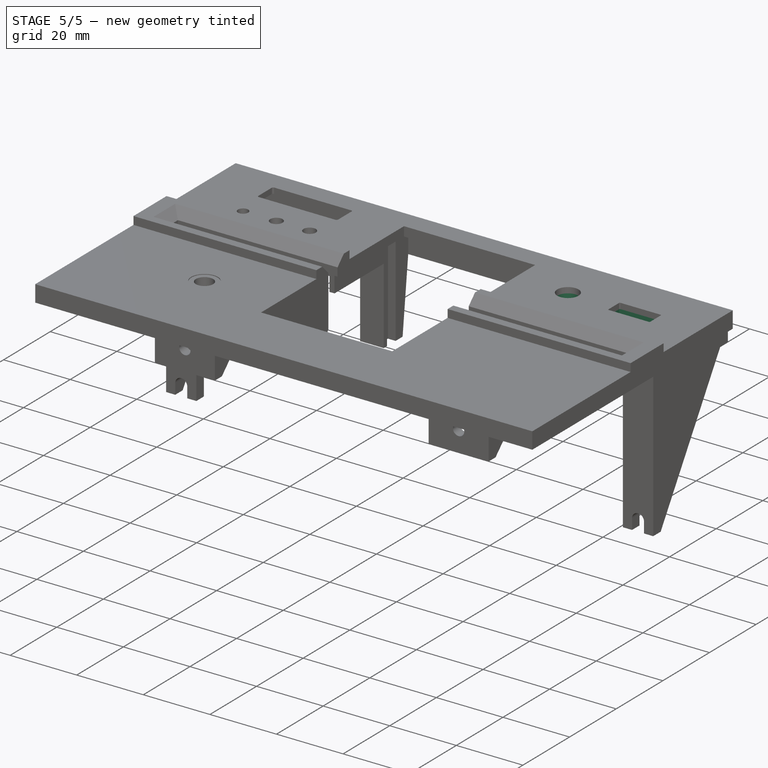
[diagram: stage 5 of 5 — iso view after this stage's code; geometry added in this stage tinted green]
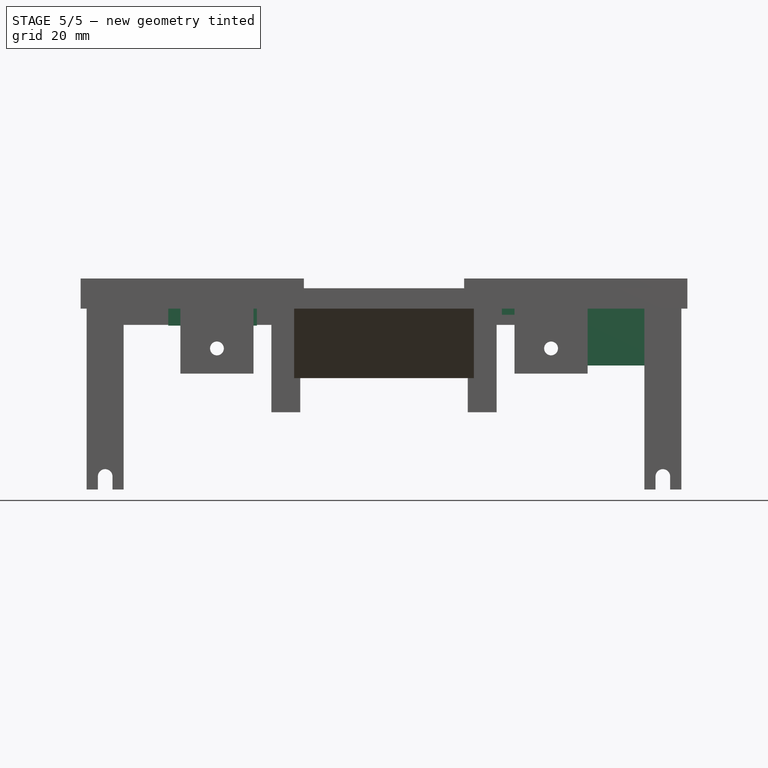
[diagram: stage 5 of 5 — front view after this stage's code; geometry added in this stage tinted green]
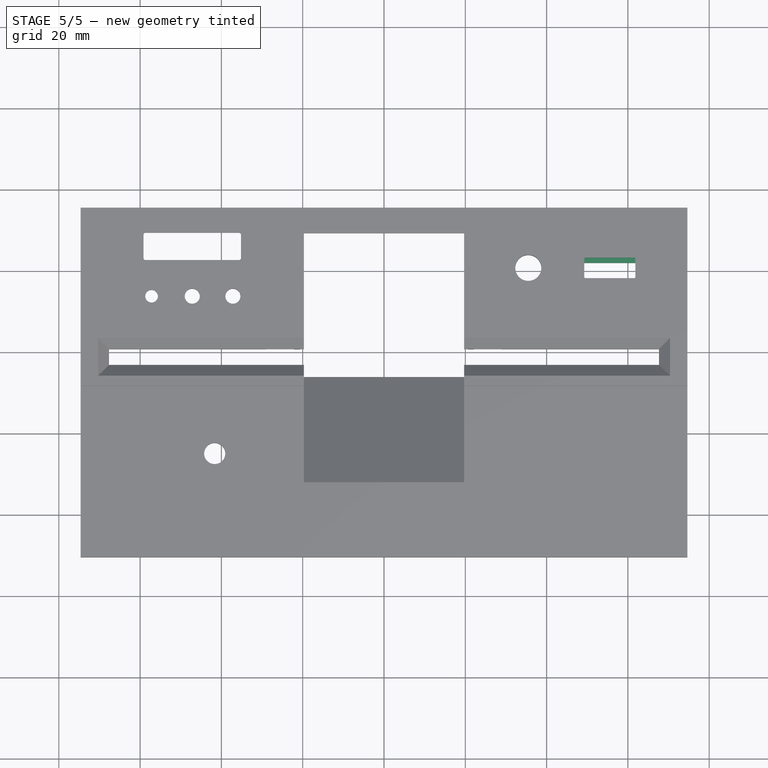
[diagram: stage 5 of 5 — top view after this stage's code; geometry added in this stage tinted green]
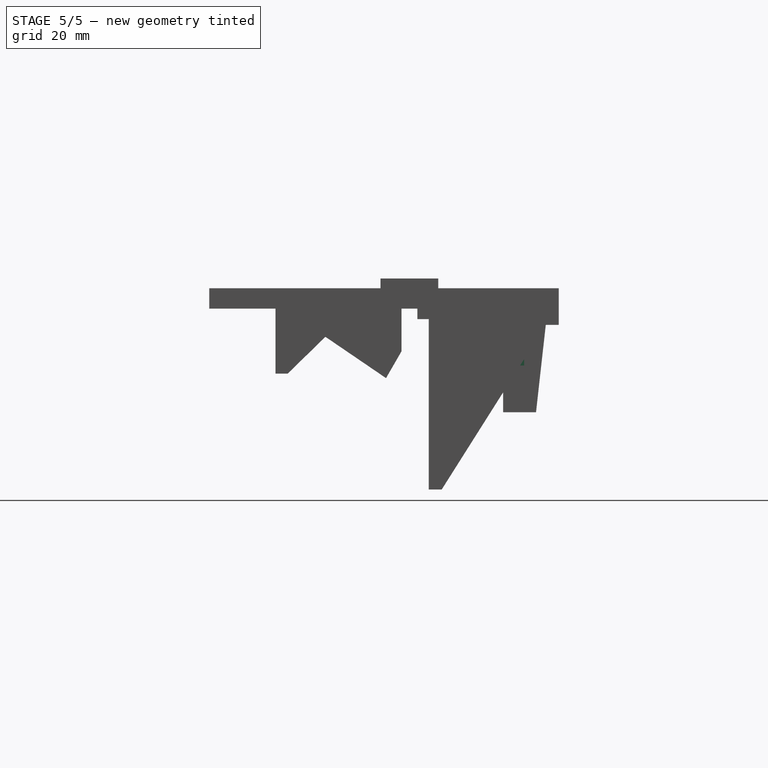
[diagram: stage 5 of 5 — right view after this stage's code; geometry added in this stage tinted green]
FEATURE [Sketcher::SketchObject] Sketch030
  ExternalGeometry = -> [Pocket018]
  FullyConstrained = true
  MapMode = 5
  Placement = pos=(-2e-16,0,0.8) rot=(1,0,0;3.14159rad)
  Support = -> [Pocket018]
  sketch-geometry (16):
    g0: LineSegment StartX=-53.075 StartY=-16.9 StartZ=0 EndX=-50.275 EndY=-16.9 EndZ=0
    g1: LineSegment StartX=-50.275 StartY=-16.9 StartZ=0 EndX=-50.275 EndY=-9.9 EndZ=0
    g2: LineSegment StartX=-50.275 StartY=-9.9 StartZ=0 EndX=-44.075 EndY=-9.9 EndZ=0
    g3: LineSegment StartX=-44.075 StartY=-9.9 StartZ=0 EndX=-44.075 EndY=-16.9 EndZ=0
    g4: LineSegment StartX=-31.275 StartY=-7.1 StartZ=0 EndX=-53.075 EndY=-7.1 EndZ=0
    g5: LineSegment StartX=-53.075 StartY=-7.1 StartZ=0 EndX=-53.075 EndY=-16.9 EndZ=0
    g6: LineSegment StartX=-40.275 StartY=-16.9 StartZ=0 EndX=-40.275 EndY=-9.9 EndZ=0
    g7: LineSegment StartX=-40.275 StartY=-9.9 StartZ=0 EndX=-34.075 EndY=-9.9 EndZ=0
    g8: LineSegment StartX=-34.075 StartY=-9.9 StartZ=0 EndX=-34.075 EndY=-16.9 EndZ=0
    g9: LineSegment StartX=-34.075 StartY=-16.9 StartZ=0 EndX=-31.275 EndY=-16.9 EndZ=0
    g10: LineSegment StartX=-31.275 StartY=-16.9 StartZ=0 EndX=-31.275 EndY=-7.1 EndZ=0
    g11: LineSegment StartX=-50.275 StartY=-9.9 StartZ=0 EndX=-47.175 EndY=-13 EndZ=0
    g12: LineSegment StartX=-47.175 StartY=-13 StartZ=0 EndX=-44.075 EndY=-9.9 EndZ=0
    g13: LineSegment StartX=-40.275 StartY=-9.9 StartZ=0 EndX=-37.175 EndY=-13 EndZ=0
    g14: LineSegment StartX=-37.175 StartY=-13 StartZ=0 EndX=-34.075 EndY=-9.9 EndZ=0
    g15: LineSegment StartX=-44.075 StartY=-16.9 StartZ=0 EndX=-40.275 EndY=-16.9 EndZ=0
  constraints (44):
    c: Horizontal(g0)
    c: Coincident(g1,g0)
    c: Vertical(g1)
    c: Coincident(g2,g1)
    c: Horizontal(g2)
    c: Coincident(g3,g2)
    c: Vertical(g3)
    c: Horizontal(g4)
    c: Coincident(g5,g4)
    c: Coincident(g5,g0)
    c: Vertical(g5)
    c: Vertical(g6)
    c: Coincident(g7,g6)
    c: Horizontal(g7)
    c: Coincident(g8,g7)
    c: Vertical(g8)
    c: Coincident(g9,g8)
    c: Horizontal(g9)
    c: Coincident(g10,g9)
    c: Vertical(g10)
    c: Coincident(g11,g1)
    c: Coincident(g11,g-3)
    c: Coincident(g12,g11)
    c: Coincident(g12,g2)
    c: Coincident(g13,g6)
    c: Coincident(g13,g-4)
    c: Coincident(g14,g13)
    c: Coincident(g14,g7)
    c: PointOnObject(g3,g0)
    c: Equal(g2,g7)
    c: Equal(g12,g11)
    c: Equal(g13,g14)
    c: DistanceX(g2,g2) = 6.2
    c: DistanceX(g0,g0) = 2.8
    c: Coincident(g15,g3)
    c: Coincident(g15,g6)
    c: Horizontal(g15)
    c: PointOnObject(g6,g9)
    c: Coincident(g4,g10)
    c: Equal(g0,g9)
    c: PointOnObject(g7,g2)
    c: DistanceY(g11,g2) = 3.1
    c: DistanceY(g3,g3) = 7
    c: DistanceY(g1,g4) = 2.8
FEATURE [PartDesign::Pad] Pad010
  BaseFeature = -> Pocket018
  Direction = (2e-16,0,-1)
  Length = 5
  Length2 = 10
  Profile = -> Sketch030
  ReferenceAxis = -> Sketch030 [N_Axis]
  Type = 0
FEATURE [Sketcher::SketchObject] Sketch031
  ExternalGeometry = -> [Pad010]
  FullyConstrained = true
  MapMode = 5
  Placement = pos=(-7e-16,0,3.3) rot=(1,0,0;3.14159rad)
  Support = -> [Pad010]
  sketch-geometry (5):
    g0: LineSegment StartX=29 StartY=-6 StartZ=0 EndX=42 EndY=-6 EndZ=0
    g1: LineSegment StartX=42 StartY=-6 StartZ=0 EndX=42 EndY=-31.6 EndZ=0
    g2: LineSegment StartX=42 StartY=-31.6 StartZ=0 EndX=29 EndY=-31.6 EndZ=0
    g3: LineSegment StartX=29 StartY=-31.6 StartZ=0 EndX=29 EndY=-6 EndZ=0
    g4: Circle CenterX=35.5 CenterY=-19.975 CenterZ=0 NormalX=0 NormalY=0 NormalZ=1 AngleXU=0 Radius=3.2
  constraints (14):
    c: DistanceX(g-3,g-6) = 6.5
    c: Coincident(g0,g1)
    c: Coincident(g1,g2)
    c: Coincident(g2,g3)
    c: Coincident(g3,g0)
    c: Horizontal(g0)
    c: Horizontal(g2)
    c: Vertical(g1)
    c: Vertical(g3)
    c: Coincident(g0,g-4)
    c: PointOnObject(g1,g-5)
    c: DistanceX(g-6,g1) = 6.5
    c: Coincident(g4,g-6)
    c: Equal(g4,g-6)
FEATURE [PartDesign::Pad] Pad011
  BaseFeature = -> Pad010
  Direction = (2e-16,0,-1)
  Length = 10
  Length2 = 10
  Profile = -> Sketch031
  ReferenceAxis = -> Sketch031 [N_Axis]
  Type = 3
  UpToFace = -> Pad010 [Face9]
FEATURE [Sketcher::SketchObject] Sketch032
  ExternalGeometry = -> [Pad011]
  FullyConstrained = true
  MapMode = 5
  Placement = pos=(0,0,1e-16) rot=(1,0,0;3.14159rad)
  Support = -> [Pad011]
  sketch-geometry (6):
    g0: Circle CenterX=35.5 CenterY=-19.975 CenterZ=0 NormalX=0 NormalY=0 NormalZ=1 AngleXU=0 Radius=3.2
    g1: LineSegment StartX=29 StartY=-27.475 StartZ=0 EndX=29 EndY=-12.475 EndZ=0
    g2: LineSegment StartX=29 StartY=-12.475 StartZ=0 EndX=42 EndY=-12.475 EndZ=0
    g3: LineSegment StartX=42 StartY=-12.475 StartZ=0 EndX=42 EndY=-27.475 EndZ=0
    g4: LineSegment StartX=42 StartY=-27.475 StartZ=0 EndX=29 EndY=-27.475 EndZ=0
    g5: GeomPoint X=35.5 Y=-19.975 Z=0
  constraints (14):
    c: Coincident(g0,g-3)
    c: Coincident(g1,g2)
    c: Coincident(g2,g3)
    c: Coincident(g3,g4)
    c: Coincident(g4,g1)
    c: Horizontal(g2)
    c: Horizontal(g4)
    c: Vertical(g1)
    c: Vertical(g3)
    c: Symmetric(g2,g1,g5)
    c: Coincident(g5,g0)
    c: PointOnObject(g1,g-4)
    c: DistanceY(g3,g3) = 15
    c: Equal(g0,g-3)
FEATURE [PartDesign::Pad] Pad012
  BaseFeature = -> Pad011
  Direction = (2e-16,0,-1)
  Length = 1.5
  Length2 = 10
  Profile = -> Sketch032
  ReferenceAxis = -> Sketch032 [N_Axis]
  Type = 0
FEATURE [Sketcher::SketchObject] Sketch033
  ExternalGeometry = -> [Pad012]
  FullyConstrained = true
  MapMode = 5
  Placement = pos=(-7e-16,0,3.3) rot=(1,0,0;3.14159rad)
  Support = -> [Pad012]
  sketch-geometry (11):
    g0: LineSegment StartX=49.515 StartY=-22.25 StartZ=0 EndX=55.55 EndY=-19.975 EndZ=0
    g1: LineSegment StartX=55.55 StartY=-19.975 StartZ=0 EndX=61.585 EndY=-17.7 EndZ=0
    g2: LineSegment StartX=48.45 StartY=-16.475 StartZ=0 EndX=48.45 EndY=-23.475 EndZ=0
    g3: LineSegment StartX=48.45 StartY=-23.475 StartZ=0 EndX=62.65 EndY=-23.475 EndZ=0
    g4: LineSegment StartX=62.65 StartY=-23.475 StartZ=0 EndX=62.65 EndY=-16.475 EndZ=0
    g5: LineSegment StartX=62.65 StartY=-16.475 StartZ=0 EndX=48.45 EndY=-16.475 EndZ=0
    g6: GeomPoint X=55.55 Y=-19.975 Z=0
    g7: LineSegment StartX=70.05 StartY=-6 StartZ=0 EndX=42 EndY=-6 EndZ=0
    g8: LineSegment StartX=42 StartY=-6 StartZ=0 EndX=42 EndY=-31.6 EndZ=0
    g9: LineSegment StartX=42 StartY=-31.6 StartZ=0 EndX=70.05 EndY=-31.6 EndZ=0
    g10: LineSegment StartX=70.05 StartY=-31.6 StartZ=0 EndX=70.05 EndY=-6 EndZ=0
  constraints (27):
    c: Coincident(g0,g-6)
    c: Coincident(g1,g0)
    c: Coincident(g1,g-5)
    c: Equal(g1,g0)
    c: PointOnObject(g0,g1)
    c: Coincident(g2,g3)
    c: Coincident(g3,g4)
    c: Coincident(g4,g5)
    c: Coincident(g5,g2)
    c: Horizontal(g3)
    c: Horizontal(g5)
    c: Vertical(g2)
    c: Vertical(g4)
    c: Symmetric(g3,g2,g6)
    c: Coincident(g6,g0)
    c: DistanceX(g5,g5) = 14.2
    c: DistanceY(g4,g4) = 7
    c: Coincident(g7,g8)
    c: Coincident(g8,g9)
    c: Coincident(g9,g10)
    c: Coincident(g10,g7)
    c: Horizontal(g7)
    c: Horizontal(g9)
    c: Vertical(g8)
    c: Vertical(g10)
    c: Coincident(g7,g-3)
    c: Coincident(g8,g-4)
FEATURE [PartDesign::Pad] Pad013
  BaseFeature = -> Pad012
  Direction = (2e-16,0,-1)
  Length = 10
  Length2 = 10
  Profile = -> Sketch033
  ReferenceAxis = -> Sketch033 [N_Axis]
  Type = 3
  UpToFace = -> Pad012 [Face9]
FEATURE [Sketcher::SketchObject] Sketch034
  ExternalGeometry = -> [Pad013]
  FullyConstrained = true
  MapMode = 5
  Placement = pos=(0,0,1e-16) rot=(1,0,0;3.14159rad)
  Support = -> [Pad013]
  sketch-geometry (9):
    g0: LineSegment StartX=48.45 StartY=-23.475 StartZ=0 EndX=62.65 EndY=-23.475 EndZ=0
    g1: LineSegment StartX=48.45 StartY=-23.475 StartZ=0 EndX=48.45 EndY=-14.475 EndZ=0
    g2: LineSegment StartX=62.65 StartY=-23.475 StartZ=0 EndX=62.65 EndY=-14.475 EndZ=0
    g3: LineSegment StartX=62.65 StartY=-14.475 StartZ=0 EndX=65.45 EndY=-14.475 EndZ=0
    g4: LineSegment StartX=65.45 StartY=-14.475 StartZ=0 EndX=65.45 EndY=-26.275 EndZ=0
    g5: LineSegment StartX=65.45 StartY=-26.275 StartZ=0 EndX=45.65 EndY=-26.275 EndZ=0
    g6: LineSegment StartX=45.65 StartY=-26.275 StartZ=0 EndX=45.65 EndY=-14.475 EndZ=0
    g7: LineSegment StartX=45.65 StartY=-14.475 StartZ=0 EndX=48.45 EndY=-14.475 EndZ=0
    g8: LineSegment StartX=48.45 StartY=-23.475 StartZ=0 EndX=48.45 EndY=-26.275 EndZ=0
  constraints (25):
    c: Coincident(g0,g-4)
    c: Coincident(g0,g-5)
    c: Coincident(g1,g0)
    c: Vertical(g1)
    c: Coincident(g2,g0)
    c: Vertical(g2)
    c: Coincident(g3,g2)
    c: Horizontal(g3)
    c: Coincident(g4,g3)
    c: Vertical(g4)
    c: Coincident(g5,g4)
    c: Horizontal(g5)
    c: Coincident(g6,g5)
    c: Vertical(g6)
    c: Coincident(g7,g6)
    c: Coincident(g7,g1)
    c: Horizontal(g7)
    c: PointOnObject(g2,g7)
    c: Equal(g3,g7)
    c: Coincident(g8,g0)
    c: PointOnObject(g8,g5)
    c: Vertical(g8)
    c: Equal(g8,g7)
    c: DistanceY(g-3,g1) = 2
    c: DistanceY(g8,g8) = 2.8
FEATURE [PartDesign::Pad] Pad014
  BaseFeature = -> Pad013
  Direction = (2e-16,0,-1)
  Length = 14
  Length2 = 10
  Profile = -> Sketch034
  ReferenceAxis = -> Sketch034 [N_Axis]
  Type = 0
FEATURE [Sketcher::SketchObject] Sketch035
  ExternalGeometry = -> [Pad014]
  FullyConstrained = true
  MapMode = 5
  Placement = pos=(0,0,1e-16) rot=(1,0,0;3.14159rad)
  Support = -> [Pad014]
  sketch-geometry (4):
    g0: LineSegment StartX=48.45 StartY=-16.475 StartZ=0 EndX=62.65 EndY=-16.475 EndZ=0
    g1: LineSegment StartX=62.65 StartY=-16.475 StartZ=0 EndX=62.65 EndY=-14.475 EndZ=0
    g2: LineSegment StartX=62.65 StartY=-14.475 StartZ=0 EndX=48.45 EndY=-14.475 EndZ=0
    g3: LineSegment StartX=48.45 StartY=-14.475 StartZ=0 EndX=48.45 EndY=-16.475 EndZ=0
  constraints (10):
    c: Coincident(g0,g1)
    c: Coincident(g1,g2)
    c: Coincident(g2,g3)
    c: Coincident(g3,g0)
    c: Horizontal(g0)
    c: Horizontal(g2)
    c: Vertical(g1)
    c: Vertical(g3)
    c: Coincident(g0,g-3)
    c: Coincident(g1,g-4)
FEATURE [PartDesign::Pad] Pad015
  BaseFeature = -> Pad014
  Direction = (2e-16,0,-1)
  Length = 3.6
  Length2 = 10
  Profile = -> Sketch035
  ReferenceAxis = -> Sketch035 [N_Axis]
  Type = 0
FEATURE [Sketcher::SketchObject] Sketch036
  ExternalGeometry = -> [Pad015]
  FullyConstrained = true
  MapMode = 5
  Placement = pos=(3.1e-15,0,-14) rot=(1,0,0;3.14159rad)
  Support = -> [Pad015]
  sketch-geometry (4):
    g0: LineSegment StartX=48.45 StartY=-23.475 StartZ=0 EndX=62.65 EndY=-23.475 EndZ=0
    g1: LineSegment StartX=62.65 StartY=-23.475 StartZ=0 EndX=62.65 EndY=-21.475 EndZ=0
    g2: LineSegment StartX=62.65 StartY=-21.475 StartZ=0 EndX=48.45 EndY=-21.475 EndZ=0
    g3: LineSegment StartX=48.45 StartY=-21.475 StartZ=0 EndX=48.45 EndY=-23.475 EndZ=0
  constraints (11):
    c: Coincident(g0,g1)
    c: Coincident(g1,g2)
    c: Coincident(g2,g3)
    c: Coincident(g3,g0)
    c: Horizontal(g0)
    c: Horizontal(g2)
    c: Vertical(g1)
    c: Vertical(g3)
    c: Coincident(g0,g-3)
    c: PointOnObject(g-3,g1)
    c: DistanceY(g1,g1) = 2
FEATURE [PartDesign::Pad] Pad016
  BaseFeature = -> Pad015
  Direction = (2e-16,0,-1)
  Length = 3
  Length2 = 10
  Profile = -> Sketch036
  ReferenceAxis = -> Sketch036 [N_Axis]
  Reversed = true
  Type = 0
FEATURE [Sketcher::SketchObject] Sketch037
  ExternalGeometry = -> [Pad016]
  FullyConstrained = true
  MapMode = 5
  Placement = pos=(0,0,1e-16) rot=(1,0,0;3.14159rad)
  Support = -> [Pad016]
  sketch-geometry (9):
    g0: Circle CenterX=-67.65 CenterY=44.2 CenterZ=0 NormalX=0 NormalY=0 NormalZ=1 AngleXU=0 Radius=0.925
    g1: Circle CenterX=67.65 CenterY=44.2 CenterZ=0 NormalX=0 NormalY=0 NormalZ=1 AngleXU=0 Radius=0.925
    g2: Circle CenterX=0 CenterY=44.2 CenterZ=0 NormalX=0 NormalY=0 NormalZ=1 AngleXU=0 Radius=0.925
    g3: Circle CenterX=-32.65 CenterY=9.2 CenterZ=0 NormalX=0 NormalY=0 NormalZ=1 AngleXU=0 Radius=0.925
    g4: Circle CenterX=32.65 CenterY=9.2 CenterZ=0 NormalX=0 NormalY=0 NormalZ=1 AngleXU=0 Radius=0.925
    g5: Circle CenterX=-24.65 CenterY=-13.8 CenterZ=0 NormalX=0 NormalY=0 NormalZ=1 AngleXU=0 Radius=0.925
    g6: Circle CenterX=24.65 CenterY=-13.8 CenterZ=0 NormalX=0 NormalY=0 NormalZ=1 AngleXU=0 Radius=0.925
    g7: Circle CenterX=67.65 CenterY=-28.8 CenterZ=0 NormalX=0 NormalY=0 NormalZ=1 AngleXU=0 Radius=0.925
    g8: Circle CenterX=-67.65 CenterY=-13.8 CenterZ=0 NormalX=0 NormalY=0 NormalZ=1 AngleXU=0 Radius=0.925
  constraints (27):
    c: PointOnObject(g2,g-2)
    c: Equal(g8,g0)
    c: Equal(g0,g3)
    c: Equal(g3,g2)
    c: Equal(g2,g4)
    c: Equal(g4,g6)
    c: Equal(g6,g5)
    c: Equal(g5,g1)
    c: Diameter(g2) = 1.85
    c: DistanceX(g-3,g0) = 7
    c: DistanceX(g1,g-4) = 7
    c: DistanceY(g0,g-3) = 7
    c: DistanceY(g2,g-3) = 7
    c: DistanceY(g1,g-4) = 7
    c: DistanceY(g4,g-4) = 42
    c: DistanceY(g3,g-4) = 42
    c: DistanceX(g-3,g3) = 42
    c: DistanceX(g4,g-4) = 42
    c: DistanceY(g5,g3) = 23
    c: DistanceY(g8,g3) = 23
    c: DistanceY(g6,g3) = 23
    c: DistanceY(g7,g3) = 38
    c: Equal(g7,g6)
    c: DistanceX(g-3,g8) = 7
    c: DistanceX(g-3,g5) = 50
    c: DistanceX(g6,g-4) = 50
    c: DistanceX(g7,g-4) = 7
FEATURE [PartDesign::Pocket] Pocket019
  BaseFeature = -> Pad016
  Direction = (-2e-16,0,1)
  Length = 4.6
  Length2 = 5
  Profile = -> Sketch037
  ReferenceAxis = -> Sketch037 [N_Axis]
  Type = 0
FEATURE [PartDesign::Body] Body
  Group = -> [Sketch,Pad,Sketch001,Pocket,Chamfer,Sketch002,Pad001,Sketch003,Pad002,Sketch004,Pad003,Sketch005,Pocket001,Sketch006,Pad004,Sketch007,Pocket002,Sketch008,Pocket003,Sketch009,Pad005,Sketch010,Pocket004,Sketch011,Pocket005,Sketch012,Pocket006,Sketch013,Pocket007,Sketch014,Pad006,Sketch015,Pocket008,Sketch016,Pocket009,Mirrored,Sketch017,Pocket010,Sketch018,Pocket011,Sketch020,Pocket012,Sketch019,+34 more]
  Origin = -> Origin
  Tip = -> Pocket019
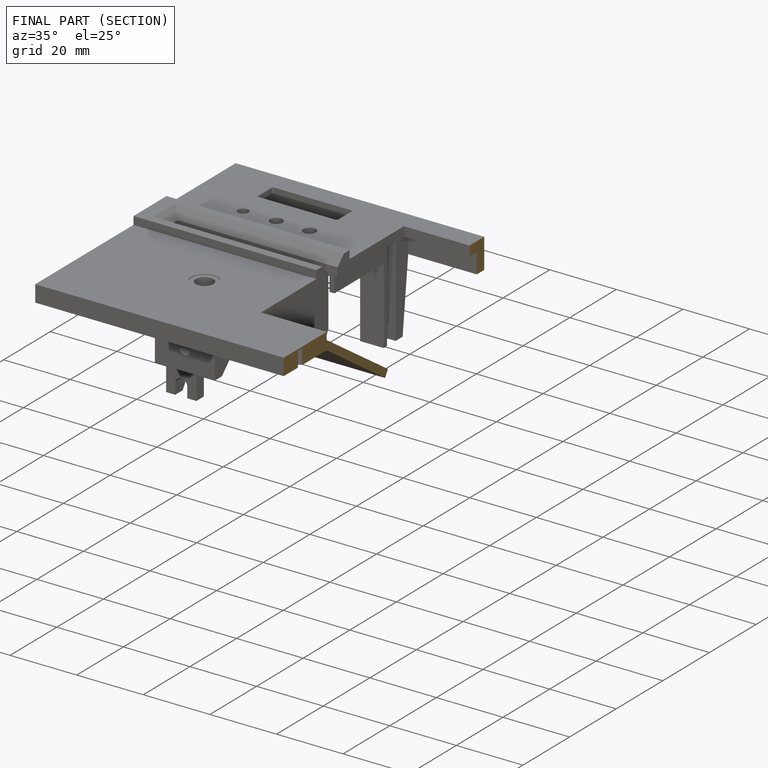
[diagram: finished part — half-section view (interior)]
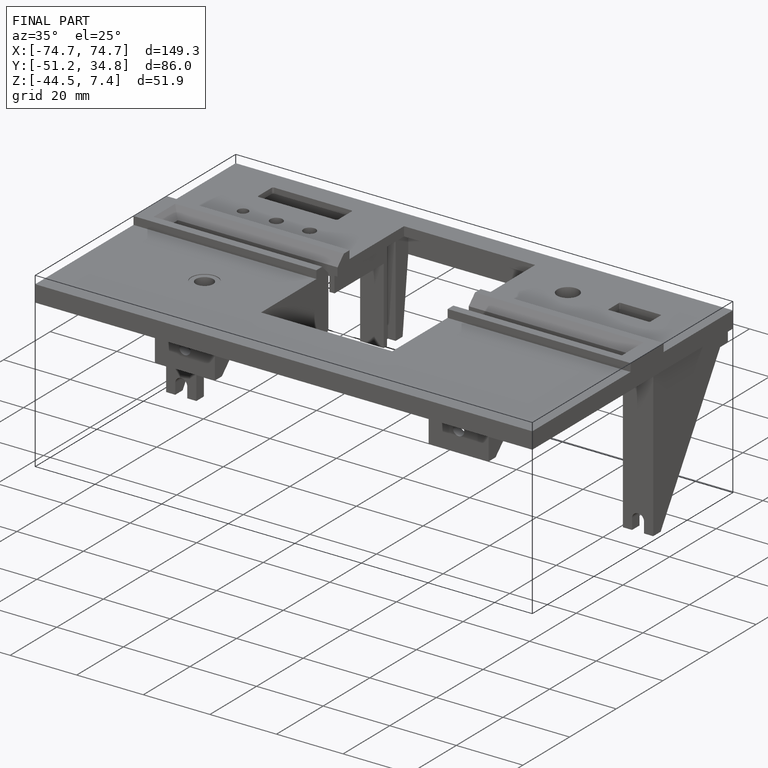
[diagram: finished part — iso view with bounding-box wireframe]
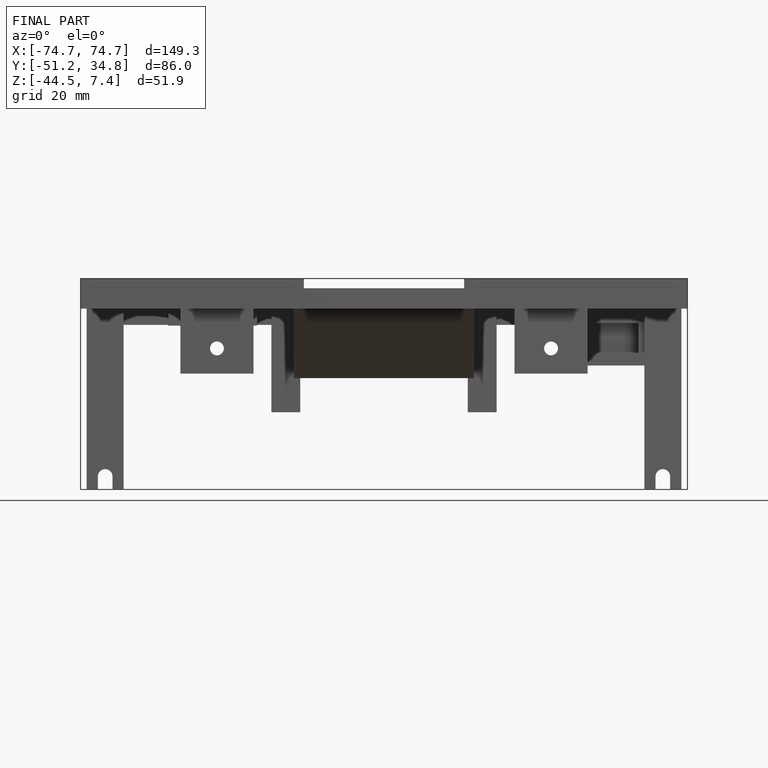
[diagram: finished part — front view with bounding-box wireframe]
